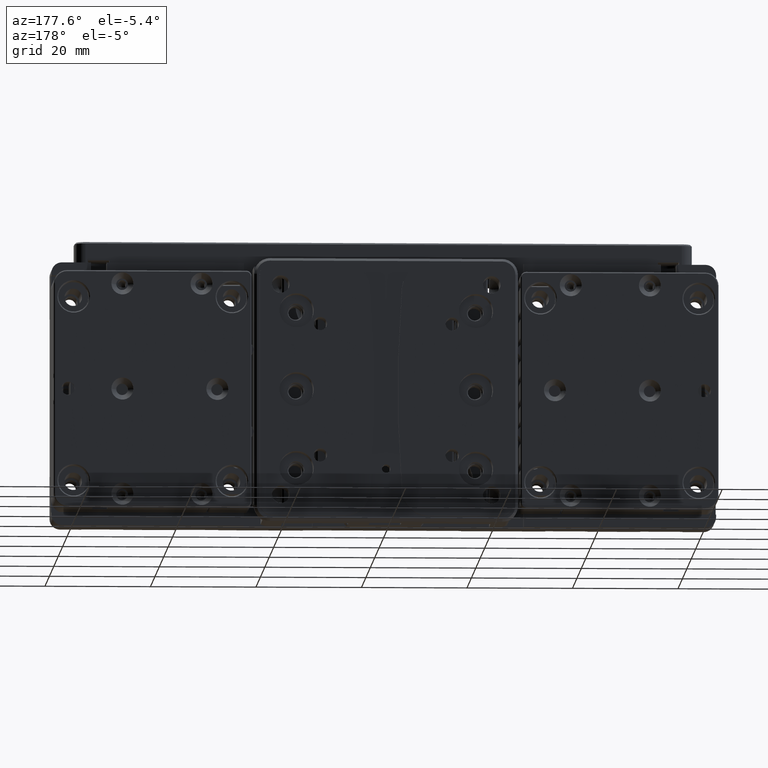
[diagram: clean part render]
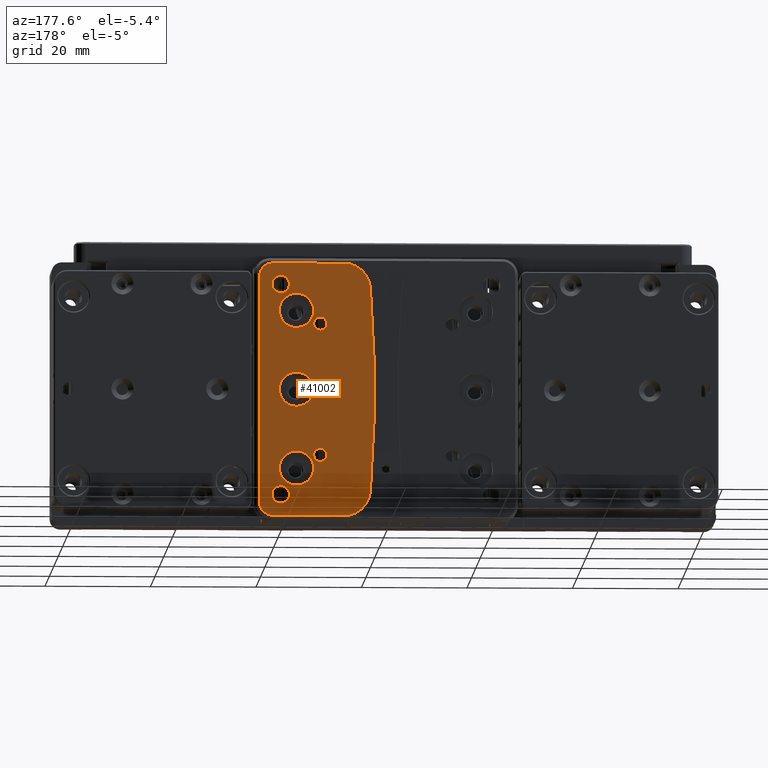
[diagram: same view with one face highlighted and labeled with its STEP entity id]
A machine part, auxiliary view. The second image highlights one B-rep face of the part: STEP entity #41002.
In plain terms, the highlighted planar face has unit normal (0, 1, 0).
Its self-contained STEP definition (entity closure, byte-faithful):
#29 = B_SPLINE_CURVE_WITH_KNOTS ( 'NONE', 3,
 ( #14380, #1636, #45003, #13805, #18655, #31107, #26872, #776, #9282, #44715, #35949, #35097, #22611, #26559, #6186, #9860, #52380, #31672, #23179, #53499, #36213, #14643, #49243, #53238, #10416, #10125, #27708, #1347, #48101, #39355, #494, #27137, #17805, #1049, #13537, #18359, #18077, #30827, #43877 ),
 .UNSPECIFIED., .F., .F.,
 ( 4, 1, 1, 1, 2, 2, 2, 1, 1, 1, 1, 2, 2, 2, 1, 1, 1, 2, 2, 2, 1, 1, 1, 2, 2, 4 ),
 ( 0.000000000000000000, 0.06250000000000284495, 0.09375000000000421885, 0.1093750000000048433, 0.1171875000000050515, 0.1250000000000052736, 0.2500000000000089373, 0.3125000000000106026, 0.3437500000000117129, 0.3593750000000122680, 0.3671875000000129896, 0.3710937500000133227, 0.3750000000000136557, 0.5000000000000109912, 0.5625000000000086597, 0.5937500000000078826, 0.6093750000000071054, 0.6171875000000066613, 0.6250000000000062172, 0.7500000000000061062, 0.8125000000000061062, 0.8437500000000062172, 0.8593750000000062172, 0.8671875000000061062, 0.8750000000000058842, 1.000000000000000000 ),
 .UNSPECIFIED. ) ;
#494 = CARTESIAN_POINT ( 'NONE',  ( 19.66602837988344987, 12.00000000000000355, -1.882998340414242966 ) ) ;
#498 = CARTESIAN_POINT ( 'NONE',  ( 13.75000000000000178, 12.00000000000000000, 12.50000000000000000 ) ) ;
#526 = CARTESIAN_POINT ( 'NONE',  ( 18.67248344549723527, 11.99999999999999822, 18.99416915874571998 ) ) ;
#636 = CARTESIAN_POINT ( 'NONE',  ( 11.31079528618943364, 12.00000000000000000, 12.11428919564030515 ) ) ;
#776 = CARTESIAN_POINT ( 'NONE',  ( 13.96787678001527766, 12.00000000000000000, -1.170250045657821980 ) ) ;
#841 = CARTESIAN_POINT ( 'NONE',  ( 18.88299834041845671, 12.00000000000000000, 2.666028379882704247 ) ) ;
#907 = CARTESIAN_POINT ( 'NONE',  ( 13.75000000000000178, 12.00000000000000000, 12.50000000000000000 ) ) ;
#1049 = CARTESIAN_POINT ( 'NONE',  ( 19.97898732659152188, 12.00000000000000178, -1.299707632458511508 ) ) ;
#1080 = CARTESIAN_POINT ( 'NONE',  ( 18.45539146887867332, 12.00000000000000000, 19.41908385115473124 ) ) ;
#1121 = ORIENTED_EDGE ( 'NONE', *, *, #53990, .T. ) ;
#1190 = CARTESIAN_POINT ( 'NONE',  ( 12.34139577475747451, 12.00000000000000178, 11.25006730190147586 ) ) ;
#1228 = CARTESIAN_POINT ( 'NONE',  ( 17.81239573087954753, 11.99999999999999822, 18.17386982665018991 ) ) ;
#1347 = CARTESIAN_POINT ( 'NONE',  ( 18.61323197277014785, 12.00000000000000000, -2.856832113944344442 ) ) ;
#1363 = CARTESIAN_POINT ( 'NONE',  ( 15.77764589737948597, 12.00000000000000355, 11.98859782982688849 ) ) ;
#1524 = DIRECTION ( 'NONE',  ( -0.000000000000000000, -1.000000000000000000, -0.000000000000000000 ) ) ;
#1550 = AXIS2_PLACEMENT_3D ( 'NONE', #30003, #29456, #34267 ) ;
#1636 = CARTESIAN_POINT ( 'NONE',  ( 13.75000000000000355, 12.00000000000000355, -0.2065496484055066861 ) ) ;
#1648 = CARTESIAN_POINT ( 'NONE',  ( 19.66602837988388330, 12.00000000000000000, 13.11700165958588471 ) ) ;
#1688 = B_SPLINE_CURVE_WITH_KNOTS ( 'NONE', 3,
 ( #22640, #26312, #18105, #31142, #43622, #39391, #1080, #9313, #526, #17838, #35127, #13564, #26596, #43911, #45868, #28007, #10449, #32265, #14965, #1925, #36242, #45572, #10155, #53526, #2213, #36509, #23484, #2511, #35980, #18685, #27737, #54105, #49829, #49565, #40784, #54364 ),
 .UNSPECIFIED., .F., .F.,
 ( 4, 1, 1, 2, 2, 2, 1, 1, 1, 2, 2, 2, 1, 1, 2, 2, 2, 1, 1, 1, 2, 2, 4 ),
 ( 0.000000000000000000, 0.06250000000000967282, 0.09375000000001534883, 0.1093750000000171807, 0.1250000000000190126, 0.2500000000000354161, 0.3125000000000429101, 0.3437500000000469624, 0.3593750000000481282, 0.3671875000000478506, 0.3750000000000475175, 0.5000000000000448530, 0.5625000000000445199, 0.5937500000000456302, 0.6093750000000460743, 0.6250000000000466294, 0.7500000000000385247, 0.8125000000000338618, 0.8437500000000300870, 0.8593750000000277556, 0.8671875000000266454, 0.8750000000000255351, 1.000000000000000000 ),
 .UNSPECIFIED. ) ;
#1709 = CARTESIAN_POINT ( 'NONE',  ( 11.39988067785202297, 12.00000000000000178, -11.90347538281029571 ) ) ;
#1773 = CARTESIAN_POINT ( 'NONE',  ( 12.11436100151380302, 11.99999999999999645, 13.68923310680025018 ) ) ;
#1789 = DIRECTION ( 'NONE',  ( 0.000000000000000000, 0.000000000000000000, 1.000000000000000000 ) ) ;
#1793 = CARTESIAN_POINT ( 'NONE',  ( 19.13959701352021625, 12.00000000000000178, 17.45664959518466475 ) ) ;
#1925 = CARTESIAN_POINT ( 'NONE',  ( 20.25920507077162114, 12.00000000000000178, 18.36442224485978869 ) ) ;
#2061 = CARTESIAN_POINT ( 'NONE',  ( 20.05835771627880959, 12.00000000000000178, 16.09991811257086880 ) ) ;
#2213 = CARTESIAN_POINT ( 'NONE',  ( 20.81887724622883695, 12.00000000000000355, 18.54951197819083575 ) ) ;
#2335 = CARTESIAN_POINT ( 'NONE',  ( 13.00000645838702162, 12.00000000000000000, 13.64585006917645416 ) ) ;
#2387 = CARTESIAN_POINT ( 'NONE',  ( 18.35000000000000142, 12.00000000000000000, -20.00000000000000000 ) ) ;
#2487 = CARTESIAN_POINT ( 'NONE',  ( 20.24999999999999645, 11.99999999999999822, 0.2065496484055080739 ) ) ;
#2495 = CARTESIAN_POINT ( 'NONE',  ( 20.61952736552822429, 11.99999999999999822, -18.47067213510407413 ) ) ;
#2511 = CARTESIAN_POINT ( 'NONE',  ( 21.35343768166858425, 12.00000000000000355, 19.04388662066243043 ) ) ;
#2531 = EDGE_CURVE ( 'NONE', #29323, #32062, #15599, .T. ) ;
#2709 = CARTESIAN_POINT ( 'NONE',  ( 18.54951197819260145, 12.00000000000000178, -20.81887724623061331 ) ) ;
#2827 = EDGE_CURVE ( 'NONE', #50929, #14316, #29, .T. ) ;
#3184 = CARTESIAN_POINT ( 'NONE',  ( 11.55519507993694184, 12.00000000000000355, 13.32301449803733817 ) ) ;
#3287 = CARTESIAN_POINT ( 'NONE',  ( 20.43481566025785057, 12.00000000000000355, -21.59332630048701063 ) ) ;
#3316 = CARTESIAN_POINT ( 'NONE',  ( 20.24999999999999289, 11.99999999999999645, -15.41345604103709732 ) ) ;
#3334 = CARTESIAN_POINT ( 'NONE',  ( 13.82606267384903731, 12.00000000000000000, 0.8122253097210844208 ) ) ;
#3403 = VERTEX_POINT ( 'NONE', #51139 ) ;
#3588 = CARTESIAN_POINT ( 'NONE',  ( 17.81239573087939476, 11.99999999999999822, -11.82613017335183869 ) ) ;
#3596 = CARTESIAN_POINT ( 'NONE',  ( 14.13948395844796124, 12.00000000000000000, 1.550648110383238354 ) ) ;
#3651 = DIRECTION ( 'NONE',  ( 1.000000000000000000, -0.000000000000000000, 0.000000000000000000 ) ) ;
#3721 = CARTESIAN_POINT ( 'NONE',  ( 13.72074512544268465, 12.00000000000000711, -12.81250397191257306 ) ) ;
#3759 = CARTESIAN_POINT ( 'NONE',  ( 21.50000000000000000, 12.00000000000000000, -24.00000000000000000 ) ) ;
#3771 = B_SPLINE_CURVE_WITH_KNOTS ( 'NONE', 3,
 ( #31291, #31571, #32113, #48858, #19082, #2061, #49418, #44057, #40917, #5237, #1793, #14278, #19356, #18822, #27297, #9460, #35829, #23062, #1228, #36658, #40384, #36114, #53133, #53395, #27033, #40086, #14538, #10593, #44329, #22504, #49126, #18239, #27874, #53954, #6339, #10293, #22771, #27590, #44890 ),
 .UNSPECIFIED., .F., .F.,
 ( 4, 1, 1, 1, 2, 2, 2, 1, 1, 1, 1, 2, 2, 2, 1, 1, 1, 2, 2, 2, 1, 1, 1, 2, 2, 4 ),
 ( 0.000000000000000000, 0.06249999999998985534, 0.09374999999998503974, 0.1093749999999821393, 0.1171874999999811678, 0.1249999999999802103, 0.2499999999999596989, 0.3124999999999494293, 0.3437499999999443223, 0.3593749999999417688, 0.3671874999999409361, 0.3710937499999407141, 0.3749999999999404365, 0.4999999999999477085, 0.5624999999999519273, 0.5937499999999544809, 0.6093749999999551470, 0.6171874999999558131, 0.6249999999999563682, 0.7499999999999724665, 0.8124999999999803491, 0.8437499999999842348, 0.8593749999999860112, 0.8671874999999867883, 0.8749999999999876765, 1.000000000000000000 ),
 .UNSPECIFIED. ) ;
#3826 = CARTESIAN_POINT ( 'NONE',  ( 20.10473459252563799, 12.00000000000000355, -21.65003366745525781 ) ) ;
#3828 = VERTEX_POINT ( 'NONE', #12225 ) ;
#3952 = CARTESIAN_POINT ( 'NONE',  ( 24.00000000000000000, 12.00000000000000000, -21.50000000000000000 ) ) ;
#4006 = CARTESIAN_POINT ( 'NONE',  ( 11.32984794906401227, 11.99999999999999822, -12.94009711632317128 ) ) ;
#4014 = CARTESIAN_POINT ( 'NONE',  ( 18.64656231832809752, 12.00000000000000178, 20.95611337933425489 ) ) ;
#4144 = CARTESIAN_POINT ( 'NONE',  ( 18.14817630305724805, 11.99999999999999467, -18.04053868708049180 ) ) ;
#4151 = CARTESIAN_POINT ( 'NONE',  ( 15.97273322492213588, 12.00000000000000178, -11.91576706332274327 ) ) ;
#4304 = CARTESIAN_POINT ( 'NONE',  ( -24.00000000000000000, 12.00000000000000000, 24.00000000000000000 ) ) ;
#4521 = EDGE_CURVE ( 'NONE', #11694, #44751, #3771, .T. ) ;
#4550 = CARTESIAN_POINT ( 'NONE',  ( 11.26097057795899481, 11.99999999999999822, -12.69644242615708585 ) ) ;
#4732 = FACE_BOUND ( 'NONE', #26152, .T. ) ;
#4954 = CARTESIAN_POINT ( 'NONE',  ( 20.25000000000000000, 12.00000000000000000, 2.786071468060228663E-16 ) ) ;
#5204 = CARTESIAN_POINT ( 'NONE',  ( 13.65492165768870869, 12.00000000000000000, 12.02142981116755394 ) ) ;
#5237 = CARTESIAN_POINT ( 'NONE',  ( 19.61509708952841180, 12.00000000000000000, 16.98099192619952191 ) ) ;
#5465 = CARTESIAN_POINT ( 'NONE',  ( 13.64585006917658738, 11.99999999999999822, 11.99999354161305121 ) ) ;
#5689 = CARTESIAN_POINT ( 'NONE',  ( 13.67015205093576391, 12.00000000000000000, -12.05990288367650365 ) ) ;
#5921 = CARTESIAN_POINT ( 'NONE',  ( 16.58707099500361792, 12.00000000000000178, 11.75006738568510123 ) ) ;
#5987 = CARTESIAN_POINT ( 'NONE',  ( 11.73795941067732507, 12.00000000000000000, -11.49437856662436452 ) ) ;
#6025 = EDGE_LOOP ( 'NONE', ( #11631, #46138 ) ) ;
#6058 = CARTESIAN_POINT ( 'NONE',  ( 13.67015205093576391, 12.00000000000000000, 12.94009711632346793 ) ) ;
#6186 = CARTESIAN_POINT ( 'NONE',  ( 15.71304554838371814, 12.00000000000000000, -2.984599718424126191 ) ) ;
#6187 = CARTESIAN_POINT ( 'NONE',  ( 16.48914864487125342, 12.00000000000000000, 3.221535459781221800 ) ) ;
#6196 = CARTESIAN_POINT ( 'NONE',  ( 18.48761328490786937, 12.00000000000000178, -19.34011429532296233 ) ) ;
#6202 = EDGE_CURVE ( 'NONE', #22639, #35130, #12969, .T. ) ;
#6257 = CARTESIAN_POINT ( 'NONE',  ( 11.47471000977076550, 12.00000000000000178, -11.77560787198907022 ) ) ;
#6339 = CARTESIAN_POINT ( 'NONE',  ( 13.99915581544945020, 12.00000000000000000, 16.24830222919076306 ) ) ;
#6457 = CARTESIAN_POINT ( 'NONE',  ( 20.01230414422176906, 12.00000000000000000, 13.77968703790210014 ) ) ;
#6476 = ORIENTED_EDGE ( 'NONE', *, *, #47890, .F. ) ;
#6522 = CARTESIAN_POINT ( 'NONE',  ( 13.75000000000000178, 12.00000000000000000, -12.50000000000000000 ) ) ;
#6591 = CARTESIAN_POINT ( 'NONE',  ( 13.32301449803876103, 12.00000000000000178, 13.44480492006192129 ) ) ;
#6643 = EDGE_LOOP ( 'NONE', ( #1121, #15146 ) ) ;
#6734 = ORIENTED_EDGE ( 'NONE', *, *, #2827, .T. ) ;
#6880 = CARTESIAN_POINT ( 'NONE',  ( 12.97854887097302523, 12.00000000000000000, 13.65493010742309643 ) ) ;
#6976 = CARTESIAN_POINT ( 'NONE',  ( 21.52932364245104679, 11.99999999999999645, -20.61953802146162573 ) ) ;
#7029 = CARTESIAN_POINT ( 'NONE',  ( 18.35000000000000497, 11.99999999999999645, -19.79000383043994660 ) ) ;
#7143 = CARTESIAN_POINT ( 'NONE',  ( 11.24999999999999822, 11.99999999999999822, -12.57938721587888331 ) ) ;
#7241 = CARTESIAN_POINT ( 'NONE',  ( 21.64999999999999858, 12.00000000000000000, -20.00000000000000000 ) ) ;
#7290 = CARTESIAN_POINT ( 'NONE',  ( 19.41908385115435465, 12.00000000000000178, -18.45539146887895043 ) ) ;
#7385 = DIRECTION ( 'NONE',  ( 0.000000000000000000, -1.000000000000000000, 0.000000000000000000 ) ) ;
#7514 = CARTESIAN_POINT ( 'NONE',  ( 18.36448116290587507, 12.00000000000000000, -20.25935403089955145 ) ) ;
#7541 = CARTESIAN_POINT ( 'NONE',  ( 13.94164228372120107, 12.00000000000000178, -16.09991811257086525 ) ) ;
#7548 = CARTESIAN_POINT ( 'NONE',  ( 15.85182369694214799, 12.00000000000000000, -11.95946131291926307 ) ) ;
#7559 = CARTESIAN_POINT ( 'NONE',  ( 13.99915581544938981, 11.99999999999999822, 1.248302229190742185 ) ) ;
#7696 = CARTESIAN_POINT ( 'NONE',  ( 13.64585006917641152, 12.00000000000000000, -13.00000645838712643 ) ) ;
#7710 = CARTESIAN_POINT ( 'NONE',  ( 11.25000000000000000, 12.00000000000000178, 12.65913117625909123 ) ) ;
#7845 = CARTESIAN_POINT ( 'NONE',  ( 20.13828294778423356, 12.00000000000000000, -14.14321122307573120 ) ) ;
#7906 = CARTESIAN_POINT ( 'NONE',  ( 24.00000000000000000, 12.00000000000000000, -24.00000000000000000 ) ) ;
#8079 = CARTESIAN_POINT ( 'NONE',  ( 20.58091614884579101, 12.00000000000000355, -21.54460853112073693 ) ) ;
#8103 = CARTESIAN_POINT ( 'NONE',  ( 19.94531297559694849, 12.00000000000000000, -16.37622671751375591 ) ) ;
#8109 = CARTESIAN_POINT ( 'NONE',  ( 18.22235410262072008, 12.00000000000000178, -11.98859782982700040 ) ) ;
#8173 = LINE ( 'NONE', #7906, #39195 ) ;
#8238 = CARTESIAN_POINT ( 'NONE',  ( 12.94009711632349990, 12.00000000000000000, -13.67015205093576391 ) ) ;
#8253 = CARTESIAN_POINT ( 'NONE',  ( 11.73795941067656656, 12.00000000000000178, 13.50562143337487697 ) ) ;
#8597 = CARTESIAN_POINT ( 'NONE',  ( 11.29296809700606374, 12.00000000000000178, 12.17053798554671395 ) ) ;
#8665 = CARTESIAN_POINT ( 'NONE',  ( 19.66602837988299868, 11.99999999999999645, -16.88299834041436043 ) ) ;
#8812 = CARTESIAN_POINT ( 'NONE',  ( 11.31079528618943009, 11.99999999999999645, -12.88571080435958471 ) ) ;
#8877 = CARTESIAN_POINT ( 'NONE',  ( 11.25000000000000178, 12.00000000000000178, 12.42061278412098702 ) ) ;
#8943 = EDGE_CURVE ( 'NONE', #47505, #42345, #28218, .T. ) ;
#8986 = FACE_BOUND ( 'NONE', #6025, .T. ) ;
#9141 = CARTESIAN_POINT ( 'NONE',  ( 11.32359429380825766, 11.99999999999999645, 12.07695880349772111 ) ) ;
#9241 = VERTEX_POINT ( 'NONE', #3759 ) ;
#9282 = CARTESIAN_POINT ( 'NONE',  ( 14.14316788605636255, 12.00000000000000178, -1.613231972768316203 ) ) ;
#9313 = CARTESIAN_POINT ( 'NONE',  ( 18.54951197819359976, 12.00000000000000355, 19.18112275376840614 ) ) ;
#9425 = CARTESIAN_POINT ( 'NONE',  ( 13.12028855198309785, 12.00000000000000000, 11.40109802053376775 ) ) ;
#9460 = CARTESIAN_POINT ( 'NONE',  ( 18.24825314420429123, 12.00000000000000355, 18.00077009587855770 ) ) ;
#9552 = PLANE ( 'NONE',  #17866 ) ;
#9723 = CARTESIAN_POINT ( 'NONE',  ( 12.57930211262126363, 12.00000000000000355, 11.24996634904926651 ) ) ;
#9860 = CARTESIAN_POINT ( 'NONE',  ( 15.75174685579642464, 12.00000000000000178, -3.000770095879078614 ) ) ;
#9977 = AXIS2_PLACEMENT_3D ( 'NONE', #55954, #38372, #38930 ) ;
#10000 = CARTESIAN_POINT ( 'NONE',  ( 12.42069788737847169, 12.00000000000000178, 13.75003365095073882 ) ) ;
#10125 = CARTESIAN_POINT ( 'NONE',  ( 18.14817630305716989, 12.00000000000000355, -3.040538687080759139 ) ) ;
#10138 = CARTESIAN_POINT ( 'NONE',  ( 18.98099192619567432, 12.00000000000000000, 12.38490291046413994 ) ) ;
#10155 = CARTESIAN_POINT ( 'NONE',  ( 20.55838787980550819, 12.00000000000000533, 18.44712868620742086 ) ) ;
#10293 = CARTESIAN_POINT ( 'NONE',  ( 13.98769585577823449, 12.00000000000000178, 16.22031296209821249 ) ) ;
#10416 = CARTESIAN_POINT ( 'NONE',  ( 18.09987886562847947, 12.00000000000000178, -3.058373246573453219 ) ) ;
#10422 = CARTESIAN_POINT ( 'NONE',  ( 16.79353549750329222, 12.00000000000000178, 3.250033692842633659 ) ) ;
#10449 = CARTESIAN_POINT ( 'NONE',  ( 19.58738124524253266, 11.99999999999999822, 18.38868399353371430 ) ) ;
#10499 = CARTESIAN_POINT ( 'NONE',  ( 11.27925487455732068, 11.99999999999999822, -12.18749602809119814 ) ) ;
#10593 = CARTESIAN_POINT ( 'NONE',  ( 15.38676802723769121, 12.00000000000000178, 17.85683211394891856 ) ) ;
#10701 = CARTESIAN_POINT ( 'NONE',  ( 18.28695445161698174, 12.00000000000000533, 2.984599718423731840 ) ) ;
#10711 = CARTESIAN_POINT ( 'NONE',  ( 18.14817630305769569, 11.99999999999999822, 11.95946131291926307 ) ) ;
#10833 = CARTESIAN_POINT ( 'NONE',  ( 13.59890197946624468, 11.99999999999999822, 13.12028855198336430 ) ) ;
#10970 = CARTESIAN_POINT ( 'NONE',  ( 20.95611337933318552, 11.99999999999999645, -18.64656231832767119 ) ) ;
#11249 = EDGE_CURVE ( 'NONE', #46743, #3403, #36214, .T. ) ;
#11253 = CARTESIAN_POINT ( 'NONE',  ( 20.20946918505795864, 12.00000000000000000, -18.35006733490982356 ) ) ;
#11497 = CARTESIAN_POINT ( 'NONE',  ( 21.52349382610838546, 11.99999999999999467, -20.63377137605057499 ) ) ;
#11532 = CARTESIAN_POINT ( 'NONE',  ( 20.03212321998473655, 12.00000000000000000, -13.82974995434214982 ) ) ;
#11549 = CARTESIAN_POINT ( 'NONE',  ( 21.64999999999999858, 12.00000000000000000, -20.00000000000000000 ) ) ;
#11631 = ORIENTED_EDGE ( 'NONE', *, *, #11249, .T. ) ;
#11689 = EDGE_CURVE ( 'NONE', #9241, #46157, #18747, .T. ) ;
#11694 = VERTEX_POINT ( 'NONE', #33429 ) ;
#11759 = CARTESIAN_POINT ( 'NONE',  ( 21.45219867616014398, 12.00000000000000355, -20.78734932246197431 ) ) ;
#11792 = CARTESIAN_POINT ( 'NONE',  ( 14.33397162011381987, 12.00000000000000178, -13.11700165958502495 ) ) ;
#11926 = CARTESIAN_POINT ( 'NONE',  ( 11.67698550196208629, 12.00000000000000000, -13.44480492006248262 ) ) ;
#11933 = CARTESIAN_POINT ( 'NONE',  ( 21.45048802181073455, 12.00000000000000000, 20.81887724622801983 ) ) ;
#12055 = CARTESIAN_POINT ( 'NONE',  ( 18.09987886562863935, 12.00000000000000000, -18.05837324657295184 ) ) ;
#12083 = CARTESIAN_POINT ( 'NONE',  ( 11.25000000000000178, 12.00000000000000000, 12.50000000000000000 ) ) ;
#12225 = CARTESIAN_POINT ( 'NONE',  ( 13.75000000000000178, 12.00000000000000000, -12.50000000000000000 ) ) ;
#12243 = ORIENTED_EDGE ( 'NONE', *, *, #32643, .T. ) ;
#12329 = CARTESIAN_POINT ( 'NONE',  ( 19.58738124523546276, 12.00000000000000000, -21.61131600646559292 ) ) ;
#12357 = CARTESIAN_POINT ( 'NONE',  ( 13.96787678001532385, 11.99999999999999822, -16.17025004565787327 ) ) ;
#12363 = CARTESIAN_POINT ( 'NONE',  ( 19.61509708953334652, 11.99999999999999822, -13.01900807380469693 ) ) ;
#12506 = CARTESIAN_POINT ( 'NONE',  ( 11.99999354161337806, 12.00000000000000000, -13.64585006917671173 ) ) ;
#12514 = CARTESIAN_POINT ( 'NONE',  ( 19.74079492923177526, 11.99999999999999822, 21.63557775514082238 ) ) ;
#12537 = CARTESIAN_POINT ( 'NONE',  ( 21.64999999999999858, 12.00000000000000000, 20.00000000000000000 ) ) ;
#12629 = CARTESIAN_POINT ( 'NONE',  ( 19.45664959518607873, 12.00000000000000178, -17.13959701351662801 ) ) ;
#12635 = CARTESIAN_POINT ( 'NONE',  ( 14.02101267340776758, 12.00000000000000000, -13.70029236754129620 ) ) ;
#12717 = CARTESIAN_POINT ( 'NONE',  ( 13.75000000000000178, 12.00000000000000000, 15.00000000000000000 ) ) ;
#12761 = CARTESIAN_POINT ( 'NONE',  ( 13.75000000000000355, 12.00000000000000355, -12.65913117626179307 ) ) ;
#12895 = CARTESIAN_POINT ( 'NONE',  ( 14.14316788605555786, 11.99999999999999822, -16.61323197276751529 ) ) ;
#12969 = CIRCLE ( 'NONE', #39212, 5.000000000000000888 ) ;
#13042 = CARTESIAN_POINT ( 'NONE',  ( 13.60011932214586494, 12.00000000000000355, -13.09652461719236882 ) ) ;
#13046 = CARTESIAN_POINT ( 'NONE',  ( 13.75000000000000178, 12.00000000000000000, 15.00000000000000000 ) ) ;
#13241 = FACE_BOUND ( 'NONE', #40693, .T. ) ;
#13372 = ORIENTED_EDGE ( 'NONE', *, *, #2531, .T. ) ;
#13407 = CARTESIAN_POINT ( 'NONE',  ( 11.67698550196257656, 12.00000000000000178, 11.55519507993689388 ) ) ;
#13537 = CARTESIAN_POINT ( 'NONE',  ( 20.00084418455029223, 11.99999999999999467, -1.248302229190622281 ) ) ;
#13564 = CARTESIAN_POINT ( 'NONE',  ( 19.21265067754038469, 12.00000000000000178, 18.54780132383701741 ) ) ;
#13666 = CARTESIAN_POINT ( 'NONE',  ( 11.40109802053557075, 12.00000000000000178, 11.87971144801454315 ) ) ;
#13805 = CARTESIAN_POINT ( 'NONE',  ( 13.86171705221576822, 12.00000000000000178, -0.8567887769236447459 ) ) ;
#13821 = CARTESIAN_POINT ( 'NONE',  ( 19.94531297559733929, 12.00000000000000355, 13.62377328248636488 ) ) ;
#13881 = CARTESIAN_POINT ( 'NONE',  ( 18.20830505842592117, 12.00000000000000000, 3.017060170696801435 ) ) ;
#13891 = CARTESIAN_POINT ( 'NONE',  ( 13.32301449803826721, 12.00000000000000178, -11.55519507993745876 ) ) ;
#13947 = CARTESIAN_POINT ( 'NONE',  ( 11.77560787198824421, 12.00000000000000000, 11.47471000977133926 ) ) ;
#14278 = CARTESIAN_POINT ( 'NONE',  ( 18.88299834042064163, 12.00000000000000000, 17.66602837988051888 ) ) ;
#14316 = VERTEX_POINT ( 'NONE', #4954 ) ;
#14380 = CARTESIAN_POINT ( 'NONE',  ( 13.75000000000000178, 12.00000000000000000, -3.582091887506007718E-16 ) ) ;
#14538 = CARTESIAN_POINT ( 'NONE',  ( 15.82974995434180698, 12.00000000000000178, 18.03212321998440260 ) ) ;
#14598 = CARTESIAN_POINT ( 'NONE',  ( 21.50000000000000000, 12.00000000000000000, 24.00000000000000000 ) ) ;
#14643 = CARTESIAN_POINT ( 'NONE',  ( 17.51085135512752800, 11.99999999999999822, -3.221535459781220023 ) ) ;
#14657 = CARTESIAN_POINT ( 'NONE',  ( 16.18760426912199790, 12.00000000000000355, 11.82613017335184225 ) ) ;
#14721 = CARTESIAN_POINT ( 'NONE',  ( 13.22439212801322128, 11.99999999999999822, -11.47471000977232691 ) ) ;
#14789 = CARTESIAN_POINT ( 'NONE',  ( 12.05990288367672214, 11.99999999999999822, 13.67015205093587937 ) ) ;
#14941 = CARTESIAN_POINT ( 'NONE',  ( 20.25000000000000000, 12.00000000000000000, 2.786071468060228663E-16 ) ) ;
#14949 = CARTESIAN_POINT ( 'NONE',  ( 19.89526540747102601, 12.00000000000000178, -18.34996633254509035 ) ) ;
#14950 = CARTESIAN_POINT ( 'NONE',  ( 14.38490291046328018, 12.00000000000000355, 13.01900807380663494 ) ) ;
#14965 = CARTESIAN_POINT ( 'NONE',  ( 20.10473459252827766, 12.00000000000000000, 18.34996633254509391 ) ) ;
#14975 = AXIS2_PLACEMENT_3D ( 'NONE', #29582, #39498, #52238 ) ;
#15018 = CARTESIAN_POINT ( 'NONE',  ( 12.07699869564966910, 12.00000000000000355, -11.32357851992509978 ) ) ;
#15146 = ORIENTED_EDGE ( 'NONE', *, *, #27739, .T. ) ;
#15235 = CARTESIAN_POINT ( 'NONE',  ( 19.18112275377138687, 12.00000000000000178, -18.54951197819134379 ) ) ;
#15494 = CARTESIAN_POINT ( 'NONE',  ( 18.55064811038576167, 12.00000000000000178, 2.860516041549759692 ) ) ;
#15501 = CARTESIAN_POINT ( 'NONE',  ( 20.41261875475886711, 11.99999999999999822, -18.38868399353371785 ) ) ;
#15599 = B_SPLINE_CURVE_WITH_KNOTS ( 'NONE', 3,
 ( #52795, #8877, #52510, #8597, #636, #9141, #30958, #13666, #17658, #13407, #13947, #21892, #34951, #52244, #30694, #17945, #1190, #9723, #25883, #21631, #26156, #48244, #47969, #9425, #30421, #43457, #53098, #26719, #44295, #5465, #5204, #22472, #39779, #907 ),
 .UNSPECIFIED., .F., .F.,
 ( 4, 1, 1, 2, 2, 2, 1, 1, 2, 2, 2, 1, 1, 2, 2, 2, 1, 1, 2, 2, 4 ),
 ( 0.000000000000000000, 0.06249999999999854283, 0.09374999999999780731, 0.1093749999999981126, 0.1249999999999984179, 0.2500000000000033862, 0.3125000000000058842, 0.3437500000000067724, 0.3593750000000069389, 0.3750000000000071054, 0.5000000000000059952, 0.5625000000000061062, 0.5937500000000061062, 0.6093750000000059952, 0.6250000000000058842, 0.7500000000000016653, 0.8124999999999991118, 0.8437499999999987788, 0.8593749999999988898, 0.8749999999999988898, 1.000000000000000000 ),
 .UNSPECIFIED. ) ;
#15734 = CARTESIAN_POINT ( 'NONE',  ( 20.81887724622751534, 12.00000000000000178, -21.45048802181122483 ) ) ;
#15783 = CARTESIAN_POINT ( 'NONE',  ( 14.33397162011425685, 12.00000000000000000, 1.882998340415103833 ) ) ;
#15790 = CARTESIAN_POINT ( 'NONE',  ( 21.56975022222995619, 12.00000000000000000, -19.49083761742470244 ) ) ;
#16062 = CARTESIAN_POINT ( 'NONE',  ( 16.18760426912185579, 12.00000000000000178, -18.17386982665019346 ) ) ;
#16223 = EDGE_LOOP ( 'NONE', ( #12243, #13372 ) ) ;
#16297 = CARTESIAN_POINT ( 'NONE',  ( 21.65000000000000213, 12.00000000000000178, -20.20999616956539668 ) ) ;
#16322 = CARTESIAN_POINT ( 'NONE',  ( 15.71304554838321899, 12.00000000000000000, -17.98459971842362037 ) ) ;
#16329 = CARTESIAN_POINT ( 'NONE',  ( 20.05835771627880249, 12.00000000000000178, -13.90008188742865869 ) ) ;
#16469 = CARTESIAN_POINT ( 'NONE',  ( 21.32751655449917294, 11.99999999999999822, 21.00583084125860367 ) ) ;
#16493 = EDGE_LOOP ( 'NONE', ( #45638, #6734 ) ) ;
#16570 = CARTESIAN_POINT ( 'NONE',  ( 18.44714446782691653, 12.00000000000000533, -20.55842777983977498 ) ) ;
#16652 = EDGE_CURVE ( 'NONE', #28111, #33577, #40339, .T. ) ;
#16754 = CARTESIAN_POINT ( 'NONE',  ( 11.29296809700606197, 12.00000000000000178, -12.82946201445311729 ) ) ;
#16763 = CARTESIAN_POINT ( 'NONE',  ( 18.48761328490776279, 12.00000000000000355, 20.65988570467676411 ) ) ;
#16769 = CARTESIAN_POINT ( 'NONE',  ( 11.27925487455732423, 12.00000000000000355, 12.81250397190987300 ) ) ;
#16796 = B_SPLINE_CURVE_WITH_KNOTS ( 'NONE', 3,
 ( #28118, #35809, #27567, #44870, #45695, #28400, #6058, #10833, #23334, #6591, #54210, #23869, #41183, #2335, #6880, #18512, #48838, #10000, #27278, #40640, #1773, #19065, #14789, #49398, #8253, #3184, #50238, #46825, #38312, #33767, #21000, #16769, #7710, #25531 ),
 .UNSPECIFIED., .F., .F.,
 ( 4, 1, 1, 2, 2, 2, 1, 1, 2, 2, 2, 1, 1, 2, 2, 2, 1, 1, 2, 2, 4 ),
 ( 0.000000000000000000, 0.06249999999999872324, 0.09374999999999822364, 0.1093749999999979738, 0.1249999999999977240, 0.2499999999999973355, 0.3124999999999976130, 0.3437499999999980571, 0.3593749999999986122, 0.3749999999999991118, 0.5000000000000022204, 0.5625000000000029976, 0.5937500000000035527, 0.6093750000000031086, 0.6250000000000026645, 0.7499999999999964473, 0.8124999999999928946, 0.8437499999999915623, 0.8593749999999914513, 0.8749999999999913403, 1.000000000000000000 ),
 .UNSPECIFIED. ) ;
#16870 = CARTESIAN_POINT ( 'NONE',  ( 21.49527580819385975, 12.00000000000000178, -20.69875642097083102 ) ) ;
#16898 = CARTESIAN_POINT ( 'NONE',  ( 13.77852350269338544, 12.00000000000000000, -15.51100036046815767 ) ) ;
#16905 = CARTESIAN_POINT ( 'NONE',  ( 14.54335040481210584, 12.00000000000000178, -12.86040298648302382 ) ) ;
#16987 = VERTEX_POINT ( 'NONE', #33476 ) ;
#17052 = CARTESIAN_POINT ( 'NONE',  ( 18.38861643441566684, 11.99999999999999645, 20.41244825981907596 ) ) ;
#17167 = CARTESIAN_POINT ( 'NONE',  ( 14.38490291046821135, 11.99999999999999645, -16.98099192619758213 ) ) ;
#17314 = CARTESIAN_POINT ( 'NONE',  ( 19.41908385115419122, 12.00000000000000000, 21.54460853112079732 ) ) ;
#17584 = CARTESIAN_POINT ( 'NONE',  ( 13.12028855198309074, 12.00000000000000000, -13.59890197946623580 ) ) ;
#17658 = CARTESIAN_POINT ( 'NONE',  ( 11.49437856662529889, 11.99999999999999822, 11.73795941067665893 ) ) ;
#17805 = CARTESIAN_POINT ( 'NONE',  ( 19.94531297559714034, 12.00000000000000355, -1.376226717513697073 ) ) ;
#17838 = CARTESIAN_POINT ( 'NONE',  ( 18.91366899381468514, 12.00000000000000000, 18.75282613719044278 ) ) ;
#17866 = AXIS2_PLACEMENT_3D ( 'NONE', #52927, #54048, #28520 ) ;
#17945 = CARTESIAN_POINT ( 'NONE',  ( 12.18732548521621517, 12.00000000000000178, 11.27932247243241015 ) ) ;
#18077 = CARTESIAN_POINT ( 'NONE',  ( 20.17393732615096980, 12.00000000000000000, -0.8122253097280950351 ) ) ;
#18105 = CARTESIAN_POINT ( 'NONE',  ( 18.36448116290587507, 12.00000000000000000, 19.74064596909922642 ) ) ;
#18239 = CARTESIAN_POINT ( 'NONE',  ( 14.13948395844829697, 12.00000000000000000, 16.55064811038332806 ) ) ;
#18329 = FACE_BOUND ( 'NONE', #16223, .T. ) ;
#18359 = CARTESIAN_POINT ( 'NONE',  ( 20.01230414422176551, 11.99999999999999645, -1.220312962097835685 ) ) ;
#18372 = CARTESIAN_POINT ( 'NONE',  ( 20.00084418455036328, 12.00000000000000355, 13.75169777080939859 ) ) ;
#18439 = CARTESIAN_POINT ( 'NONE',  ( 13.73902942204100341, 11.99999999999999822, -12.30355757384445248 ) ) ;
#18512 = CARTESIAN_POINT ( 'NONE',  ( 12.81267451478688102, 12.00000000000000178, 13.72067752756758985 ) ) ;
#18655 = CARTESIAN_POINT ( 'NONE',  ( 13.91579285940531463, 12.00000000000000000, -1.027331964912622242 ) ) ;
#18666 = CARTESIAN_POINT ( 'NONE',  ( 14.14316788605751007, 11.99999999999999822, 13.38676802722980952 ) ) ;
#18685 = CARTESIAN_POINT ( 'NONE',  ( 21.49527580819367856, 12.00000000000000178, 19.30124357902871779 ) ) ;
#18700 = EDGE_CURVE ( 'NONE', #3403, #46743, #1688, .T. ) ;
#18707 = B_SPLINE_CURVE_WITH_KNOTS ( 'NONE', 3,
 ( #12717, #31684, #26887, #40216, #48716, #27426, #31949, #35963, #18666, #14950, #35376, #44727, #40515, #32249, #36226, #36494, #1363, #39934, #14657, #5921, #23192, #53788, #49548, #31120, #19202, #10711, #27991, #45278, #10138, #52666, #1648, #45017, #13821, #22625, #18372, #6457, #23734, #31423, #49254 ),
 .UNSPECIFIED., .F., .F.,
 ( 4, 1, 1, 1, 2, 2, 2, 1, 1, 1, 1, 2, 2, 2, 1, 1, 1, 2, 2, 2, 1, 1, 1, 2, 2, 4 ),
 ( 0.000000000000000000, 0.06250000000000222045, 0.09375000000000327516, 0.1093750000000037331, 0.1171875000000038719, 0.1250000000000039968, 0.2500000000000034972, 0.3125000000000031086, 0.3437500000000031086, 0.3593750000000029976, 0.3671875000000034972, 0.3710937500000042744, 0.3750000000000051070, 0.5000000000000049960, 0.5625000000000049960, 0.5937500000000045519, 0.6093750000000043299, 0.6171875000000042188, 0.6250000000000042188, 0.7500000000000046629, 0.8125000000000051070, 0.8437500000000053291, 0.8593750000000056621, 0.8671875000000057732, 0.8750000000000059952, 1.000000000000000000 ),
 .UNSPECIFIED. ) ;
#18747 = CIRCLE ( 'NONE', #1550, 2.499999999999998668 ) ;
#18822 = CARTESIAN_POINT ( 'NONE',  ( 18.37622671751648795, 12.00000000000000178, 17.94531297559585781 ) ) ;
#18998 = CARTESIAN_POINT ( 'NONE',  ( 11.35414993082284241, 12.00000000000000355, -11.99999354161383280 ) ) ;
#19065 = CARTESIAN_POINT ( 'NONE',  ( 12.07699869564966200, 12.00000000000000000, 13.67642148007490022 ) ) ;
#19082 = CARTESIAN_POINT ( 'NONE',  ( 20.08420714059467471, 12.00000000000000178, 16.02733196491219303 ) ) ;
#19202 = CARTESIAN_POINT ( 'NONE',  ( 18.09987886562948489, 12.00000000000000178, 11.94162675342658808 ) ) ;
#19223 = ORIENTED_EDGE ( 'NONE', *, *, #4521, .T. ) ;
#19269 = CARTESIAN_POINT ( 'NONE',  ( 13.70703190299393803, 12.00000000000000178, -12.17053798554804267 ) ) ;
#19356 = CARTESIAN_POINT ( 'NONE',  ( 18.55064811038738526, 12.00000000000000178, 17.86051604154813077 ) ) ;
#19780 = CARTESIAN_POINT ( 'NONE',  ( 21.59328211195199643, 12.00000000000000178, -19.56507261964532063 ) ) ;
#20047 = CARTESIAN_POINT ( 'NONE',  ( 13.75000000000000178, 12.00000000000000000, -3.582091887506007718E-16 ) ) ;
#20250 = CIRCLE ( 'NONE', #22066, 250.0000000000000000 ) ;
#20295 = CARTESIAN_POINT ( 'NONE',  ( 17.85667702291790704, 11.99999999999999822, -18.13832716963874248 ) ) ;
#20316 = CARTESIAN_POINT ( 'NONE',  ( 18.35000000000000142, 12.00000000000000000, -20.00000000000000000 ) ) ;
#20556 = CARTESIAN_POINT ( 'NONE',  ( 19.30124357902910504, 12.00000000000000178, -21.49527580819406936 ) ) ;
#20585 = CARTESIAN_POINT ( 'NONE',  ( 20.01230414422176906, 12.00000000000000000, -16.22031296209776841 ) ) ;
#20729 = CARTESIAN_POINT ( 'NONE',  ( 21.08633100618711609, 12.00000000000000000, 21.24717386280740072 ) ) ;
#20823 = CARTESIAN_POINT ( 'NONE',  ( 21.61138356558433671, 12.00000000000000000, -20.41244825982443345 ) ) ;
#20853 = CARTESIAN_POINT ( 'NONE',  ( 20.22147649730661101, 12.00000000000000000, -14.48899963953001269 ) ) ;
#20861 = CARTESIAN_POINT ( 'NONE',  ( 15.85182369694267734, 11.99999999999999822, 3.040538687080759139 ) ) ;
#20987 = CARTESIAN_POINT ( 'NONE',  ( 11.90347538280903450, 11.99999999999999822, -13.60011932214671582 ) ) ;
#20995 = CARTESIAN_POINT ( 'NONE',  ( 19.89526540747367278, 12.00000000000000178, 21.65003366745524715 ) ) ;
#21000 = CARTESIAN_POINT ( 'NONE',  ( 11.34507834231128953, 12.00000000000000000, 12.97857018883265212 ) ) ;
#21094 = CARTESIAN_POINT ( 'NONE',  ( 18.35000000000000142, 12.00000000000000355, -20.10481971260138323 ) ) ;
#21120 = CARTESIAN_POINT ( 'NONE',  ( 15.62377328248479991, 12.00000000000000178, -17.94531297559660388 ) ) ;
#21129 = CARTESIAN_POINT ( 'NONE',  ( 19.13959701351775067, 12.00000000000000000, -12.54335040481323738 ) ) ;
#21283 = CARTESIAN_POINT ( 'NONE',  ( 13.52528999022641365, 12.00000000000000000, -13.22439212801447717 ) ) ;
#21435 = CARTESIAN_POINT ( 'NONE',  ( 15.82974995434212673, 12.00000000000000178, -11.96787678001524391 ) ) ;
#21565 = CARTESIAN_POINT ( 'NONE',  ( 12.02145112902684332, 12.00000000000000178, -13.65493010742309643 ) ) ;
#21568 = DIRECTION ( 'NONE',  ( -1.000000000000000000, -0.000000000000000000, 0.000000000000000000 ) ) ;
#21573 = CARTESIAN_POINT ( 'NONE',  ( 20.61952736552778731, 12.00000000000000000, 21.52932786489597561 ) ) ;
#21631 = CARTESIAN_POINT ( 'NONE',  ( 12.82935031642749557, 12.00000000000000000, 11.29292393013322204 ) ) ;
#21821 = CARTESIAN_POINT ( 'NONE',  ( 11.96102033297377787, 12.00000000000000178, -13.62810262512491377 ) ) ;
#21892 = CARTESIAN_POINT ( 'NONE',  ( 11.90347538280968287, 11.99999999999999822, 11.39988067785245640 ) ) ;
#21967 = B_SPLINE_CURVE_WITH_KNOTS ( 'NONE', 3,
 ( #30196, #25116, #16898, #46359, #42424, #7541, #25377, #12357, #12895, #17167, #50897, #24825, #42145, #21120, #16322, #56009, #29654, #38731, #16062, #25950, #34443, #47487, #20295, #51470, #12055, #4144, #55174, #46936, #51728, #12629, #8665, #43263, #8103, #37610, #42691, #20585, #29364, #3316, #47200 ),
 .UNSPECIFIED., .F., .F.,
 ( 4, 1, 1, 1, 2, 2, 2, 1, 1, 1, 1, 2, 2, 2, 1, 1, 1, 2, 2, 2, 1, 1, 1, 2, 2, 4 ),
 ( 0.000000000000000000, 0.06249999999998749611, 0.09374999999998144540, 0.1093749999999788641, 0.1171874999999779898, 0.1249999999999771017, 0.2499999999999648059, 0.3124999999999584777, 0.3437499999999550915, 0.3593749999999538702, 0.3671874999999534817, 0.3710937499999537037, 0.3749999999999538702, 0.4999999999999603650, 0.5624999999999624745, 0.5937499999999641398, 0.6093749999999643618, 0.6171874999999648059, 0.6249999999999652500, 0.7499999999999757971, 0.8124999999999811262, 0.8437499999999837907, 0.8593749999999850120, 0.8671874999999854561, 0.8749999999999859002, 1.000000000000000000 ),
 .UNSPECIFIED. ) ;
#22036 = CARTESIAN_POINT ( 'NONE',  ( 24.00000000000000000, 12.00000000000000000, 21.50000000000000000 ) ) ;
#22066 = AXIS2_PLACEMENT_3D ( 'NONE', #26445, #1524, #1789 ) ;
#22338 = EDGE_CURVE ( 'NONE', #35130, #30723, #20250, .T. ) ;
#22406 = CARTESIAN_POINT ( 'NONE',  ( 19.85683211394459136, 12.00000000000000000, 1.613231972765918565 ) ) ;
#22472 = CARTESIAN_POINT ( 'NONE',  ( 13.72074512544267755, 11.99999999999999645, 12.18749602808849808 ) ) ;
#22504 = CARTESIAN_POINT ( 'NONE',  ( 14.54335040481261210, 12.00000000000000355, 17.13959701351712184 ) ) ;
#22569 = ORIENTED_EDGE ( 'NONE', *, *, #11689, .F. ) ;
#22611 = CARTESIAN_POINT ( 'NONE',  ( 15.44935188961646233, 12.00000000000000000, -2.860516041551028010 ) ) ;
#22625 = CARTESIAN_POINT ( 'NONE',  ( 19.97898732659162846, 12.00000000000000000, 13.70029236754152357 ) ) ;
#22639 = VERTEX_POINT ( 'NONE', #52473 ) ;
#22640 = CARTESIAN_POINT ( 'NONE',  ( 18.35000000000000142, 12.00000000000000000, 20.00000000000000000 ) ) ;
#22771 = CARTESIAN_POINT ( 'NONE',  ( 13.82606267384903909, 12.00000000000000355, 15.81222530972212503 ) ) ;
#22965 = CARTESIAN_POINT ( 'NONE',  ( 13.50562143337302423, 12.00000000000000000, -11.73795941067553628 ) ) ;
#23062 = CARTESIAN_POINT ( 'NONE',  ( 18.20830505842597802, 11.99999999999999822, 18.01706017069673393 ) ) ;
#23179 = CARTESIAN_POINT ( 'NONE',  ( 16.18760426911980232, 11.99999999999999822, -3.173869826647994330 ) ) ;
#23192 = CARTESIAN_POINT ( 'NONE',  ( 17.20646450249819637, 12.00000000000000355, 11.74996630715745027 ) ) ;
#23224 = VECTOR ( 'NONE', #39981, 1000.000000000000000 ) ;
#23305 = B_SPLINE_CURVE_WITH_KNOTS ( 'NONE', 3,
 ( #6522, #32316, #18439, #19269, #44511, #45081, #5689, #36287, #22965, #13891, #14721, #36032, #53862, #35734, #40288, #36563, #23801, #53573, #31488, #49611, #53312, #15018, #27492, #44796, #5987, #40578, #6257, #1709, #41114, #18998, #49324, #10499, #48486, #40830 ),
 .UNSPECIFIED., .F., .F.,
 ( 4, 1, 1, 2, 2, 2, 1, 1, 2, 2, 2, 1, 1, 2, 2, 2, 1, 1, 2, 2, 4 ),
 ( 0.000000000000000000, 0.06250000000000291434, 0.09375000000000451028, 0.1093750000000046352, 0.1250000000000047740, 0.2500000000000041633, 0.3125000000000043299, 0.3437500000000048295, 0.3593750000000044964, 0.3750000000000041633, 0.4999999999999996114, 0.5624999999999973355, 0.5937499999999962252, 0.6093749999999956701, 0.6249999999999950040, 0.7499999999999940048, 0.8124999999999934497, 0.8437499999999933387, 0.8593749999999942268, 0.8749999999999950040, 1.000000000000000000 ),
 .UNSPECIFIED. ) ;
#23334 = CARTESIAN_POINT ( 'NONE',  ( 13.50562143337203658, 11.99999999999999822, 13.26204058932571783 ) ) ;
#23467 = CARTESIAN_POINT ( 'NONE',  ( 21.55285553217309413, 11.99999999999999822, -19.44157222016114872 ) ) ;
#23484 = CARTESIAN_POINT ( 'NONE',  ( 21.24717386280716624, 12.00000000000000178, 18.91366899381227995 ) ) ;
#23732 = CARTESIAN_POINT ( 'NONE',  ( 19.44161212019416496, 12.00000000000000355, -18.44712868620742086 ) ) ;
#23734 = CARTESIAN_POINT ( 'NONE',  ( 20.17393732615096980, 11.99999999999999645, 14.18777469027294735 ) ) ;
#23801 = CARTESIAN_POINT ( 'NONE',  ( 12.65860422524305662, 12.00000000000000178, -11.25006730190147941 ) ) ;
#23869 = CARTESIAN_POINT ( 'NONE',  ( 13.09652461719206329, 11.99999999999999822, 13.60011932214597863 ) ) ;
#24023 = CARTESIAN_POINT ( 'NONE',  ( 21.64999999999999858, 12.00000000000000178, -19.89518028740058853 ) ) ;
#24306 = CARTESIAN_POINT ( 'NONE',  ( 18.99416915874423140, 11.99999999999999467, -18.67248344549944861 ) ) ;
#24546 = CARTESIAN_POINT ( 'NONE',  ( 13.75000000000000000, 12.00000000000000000, -14.58654395897199052 ) ) ;
#24825 = CARTESIAN_POINT ( 'NONE',  ( 15.11700165958231068, 11.99999999999999822, -17.66602837988221708 ) ) ;
#24831 = CARTESIAN_POINT ( 'NONE',  ( 16.79353549750111085, 11.99999999999999822, -11.74996630715744850 ) ) ;
#24839 = CARTESIAN_POINT ( 'NONE',  ( 15.82974995434198462, 12.00000000000000000, 3.032123219984597107 ) ) ;
#24972 = B_SPLINE_CURVE_WITH_KNOTS ( 'NONE', 3,
 ( #11549, #24023, #54347, #19780, #15790, #23467, #53787, #37066, #32247, #37334, #10970, #50086, #28258, #41339, #45014, #2495, #15501, #11253, #14949, #49253, #36798, #54087, #23732, #7290, #15235, #24306, #41606, #28556, #32523, #45848, #6196, #37636, #49812, #27990, #7029, #20316 ),
 .UNSPECIFIED., .F., .F.,
 ( 4, 1, 1, 2, 2, 2, 1, 1, 1, 2, 2, 2, 1, 1, 2, 2, 2, 1, 1, 1, 2, 2, 4 ),
 ( 0.000000000000000000, 0.06249999999998921696, 0.09374999999998465117, 0.1093749999999823752, 0.1249999999999800993, 0.2499999999999607536, 0.3124999999999510947, 0.3437499999999470979, 0.3593749999999446554, 0.3671874999999447109, 0.3749999999999447109, 0.4999999999999474865, 0.5624999999999478195, 0.5937499999999491518, 0.6093749999999499289, 0.6249999999999507061, 0.7499999999999594769, 0.8124999999999639178, 0.8437499999999670264, 0.8593749999999676925, 0.8671874999999692468, 0.8749999999999709122, 1.000000000000000000 ),
 .UNSPECIFIED. ) ;
#24984 = CARTESIAN_POINT ( 'NONE',  ( 11.40109802053556187, 12.00000000000000178, -13.12028855198573041 ) ) ;
#25103 = CARTESIAN_POINT ( 'NONE',  ( 20.25000000000000000, 12.00000000000000000, -15.00000000000000000 ) ) ;
#25116 = CARTESIAN_POINT ( 'NONE',  ( 13.74999999999999822, 12.00000000000000178, -15.20654964840494294 ) ) ;
#25122 = CARTESIAN_POINT ( 'NONE',  ( 18.55064811038415229, 12.00000000000000000, -12.13948395844911587 ) ) ;
#25131 = CARTESIAN_POINT ( 'NONE',  ( 13.98769585577823626, 12.00000000000000178, 1.220312962098274001 ) ) ;
#25250 = CARTESIAN_POINT ( 'NONE',  ( 11.49437856662627766, 11.99999999999999822, -13.26204058932458985 ) ) ;
#25377 = CARTESIAN_POINT ( 'NONE',  ( 13.95946947290456741, 11.99999999999999645, -16.14819692433197673 ) ) ;
#25391 = CARTESIAN_POINT ( 'NONE',  ( 14.05468702440185069, 11.99999999999999822, 1.376226717514072995 ) ) ;
#25457 = EDGE_CURVE ( 'NONE', #50565, #35203, #21967, .T. ) ;
#25527 = CARTESIAN_POINT ( 'NONE',  ( 20.65988570467736452, 12.00000000000000000, 21.51238671509149114 ) ) ;
#25531 = CARTESIAN_POINT ( 'NONE',  ( 11.25000000000000178, 12.00000000000000000, 12.50000000000000000 ) ) ;
#25664 = CARTESIAN_POINT ( 'NONE',  ( 18.28695445161647015, 12.00000000000000000, -12.01540028157592310 ) ) ;
#25805 = CARTESIAN_POINT ( 'NONE',  ( 12.69629349545625807, 12.00000000000000000, -13.73908831120479768 ) ) ;
#25883 = CARTESIAN_POINT ( 'NONE',  ( 12.69629349545625097, 12.00000000000000000, 11.26091168879519877 ) ) ;
#25950 = CARTESIAN_POINT ( 'NONE',  ( 16.58707099500726301, 12.00000000000000178, -18.24993261431693270 ) ) ;
#26088 = CARTESIAN_POINT ( 'NONE',  ( 13.62810262512435955, 12.00000000000000000, -13.03897966702713340 ) ) ;
#26096 = CARTESIAN_POINT ( 'NONE',  ( 18.47067635754894965, 11.99999999999999822, 20.61953802146196679 ) ) ;
#26107 = ORIENTED_EDGE ( 'NONE', *, *, #30994, .T. ) ;
#26152 = EDGE_LOOP ( 'NONE', ( #44258, #42684 ) ) ;
#26156 = CARTESIAN_POINT ( 'NONE',  ( 12.88563899848596961, 11.99999999999999645, 11.31076689319974449 ) ) ;
#26312 = CARTESIAN_POINT ( 'NONE',  ( 18.35000000000000497, 12.00000000000000355, 19.89518028739791333 ) ) ;
#26445 = CARTESIAN_POINT ( 'NONE',  ( 252.2500000000000284, 12.00000000000000000, 0.000000000000000000 ) ) ;
#26559 = CARTESIAN_POINT ( 'NONE',  ( 15.62377328248575381, 12.00000000000000000, -2.945312975597558669 ) ) ;
#26596 = CARTESIAN_POINT ( 'NONE',  ( 19.30124357903054388, 11.99999999999999822, 18.50472419180448824 ) ) ;
#26640 = CARTESIAN_POINT ( 'NONE',  ( 20.04053052709542726, 11.99999999999999822, 1.148196924332116620 ) ) ;
#26719 = CARTESIAN_POINT ( 'NONE',  ( 13.60011932214636055, 12.00000000000000178, 11.90347538280813922 ) ) ;
#26872 = CARTESIAN_POINT ( 'NONE',  ( 13.95946947290456919, 11.99999999999999822, -1.148196924332115954 ) ) ;
#26887 = CARTESIAN_POINT ( 'NONE',  ( 13.77852350269338544, 11.99999999999999822, 14.48899963953001446 ) ) ;
#27033 = CARTESIAN_POINT ( 'NONE',  ( 15.90012113437105867, 12.00000000000000355, 18.05837324657295895 ) ) ;
#27076 = ORIENTED_EDGE ( 'NONE', *, *, #16652, .F. ) ;
#27083 = EDGE_LOOP ( 'NONE', ( #19223, #38807 ) ) ;
#27137 = CARTESIAN_POINT ( 'NONE',  ( 19.86051604155031214, 12.00000000000000178, -1.550648110382592648 ) ) ;
#27278 = CARTESIAN_POINT ( 'NONE',  ( 12.30370650454328363, 12.00000000000000355, 13.73908831120480301 ) ) ;
#27297 = CARTESIAN_POINT ( 'NONE',  ( 18.28695445161748623, 12.00000000000000355, 17.98459971842322602 ) ) ;
#27426 = CARTESIAN_POINT ( 'NONE',  ( 13.94164228372120107, 12.00000000000000355, 13.90008188742866047 ) ) ;
#27492 = CARTESIAN_POINT ( 'NONE',  ( 12.05990288367672214, 12.00000000000000000, -11.32984794906412240 ) ) ;
#27567 = CARTESIAN_POINT ( 'NONE',  ( 13.73902942204100519, 11.99999999999999822, 12.69644242615531660 ) ) ;
#27590 = CARTESIAN_POINT ( 'NONE',  ( 13.75000000000000000, 12.00000000000000000, 15.41345604103009670 ) ) ;
#27708 = CARTESIAN_POINT ( 'NONE',  ( 18.17025004565771340, 12.00000000000000355, -3.032123219984683260 ) ) ;
#27737 = CARTESIAN_POINT ( 'NONE',  ( 21.51238671509137035, 12.00000000000000000, 19.34011429532237258 ) ) ;
#27739 = EDGE_CURVE ( 'NONE', #16987, #3828, #41380, .T. ) ;
#27813 = EDGE_CURVE ( 'NONE', #46157, #28111, #44227, .T. ) ;
#27874 = CARTESIAN_POINT ( 'NONE',  ( 14.05468702440205497, 12.00000000000000000, 16.37622671751412540 ) ) ;
#27990 = CARTESIAN_POINT ( 'NONE',  ( 18.38861643441566329, 12.00000000000000000, -19.58755174018091694 ) ) ;
#27991 = CARTESIAN_POINT ( 'NONE',  ( 18.17025004565757840, 12.00000000000000178, 11.96787678001515864 ) ) ;
#28007 = CARTESIAN_POINT ( 'NONE',  ( 19.38047263447169044, 12.00000000000000178, 18.47067213510407768 ) ) ;
#28059 = VECTOR ( 'NONE', #21568, 1000.000000000000000 ) ;
#28111 = VERTEX_POINT ( 'NONE', #22036 ) ;
#28118 = CARTESIAN_POINT ( 'NONE',  ( 13.75000000000000178, 12.00000000000000000, 12.50000000000000000 ) ) ;
#28218 = B_SPLINE_CURVE_WITH_KNOTS ( 'NONE', 3,
 ( #42665, #21094, #7514, #37282, #29056, #16570, #54870, #2709, #37867, #55150, #42111, #37577, #20556, #46067, #28498, #54573, #12329, #50869, #3826, #46332, #3287, #33863, #55700, #8079, #15734, #38408, #50339, #55413, #11759, #16870, #34155, #11497, #6976, #20823, #16297, #7241 ),
 .UNSPECIFIED., .F., .F.,
 ( 4, 1, 1, 2, 2, 2, 1, 1, 1, 2, 2, 2, 1, 1, 2, 2, 2, 1, 1, 1, 2, 2, 4 ),
 ( 0.000000000000000000, 0.06249999999999485134, 0.09374999999999310274, 0.1093749999999922423, 0.1249999999999913680, 0.2500000000000003331, 0.3125000000000047740, 0.3437500000000073275, 0.3593750000000081601, 0.3671875000000080491, 0.3750000000000079381, 0.4999999999999987788, 0.5624999999999942268, 0.5937499999999917843, 0.6093749999999920064, 0.6249999999999921174, 0.7499999999999885647, 0.8124999999999868994, 0.8437499999999863443, 0.8593749999999860112, 0.8671874999999855671, 0.8749999999999850120, 1.000000000000000000 ),
 .UNSPECIFIED. ) ;
#28249 = CARTESIAN_POINT ( 'NONE',  ( 20.13828294778423356, 12.00000000000000000, 0.8567887769236468554 ) ) ;
#28258 = CARTESIAN_POINT ( 'NONE',  ( 20.69875642096936375, 12.00000000000000000, -18.50472419180470141 ) ) ;
#28400 = CARTESIAN_POINT ( 'NONE',  ( 13.67640570619174412, 12.00000000000000178, 12.92304119650174776 ) ) ;
#28498 = CARTESIAN_POINT ( 'NONE',  ( 19.36622862394940370, 12.00000000000000355, -21.52349382610846362 ) ) ;
#28520 = DIRECTION ( 'NONE',  ( 0.000000000000000000, -0.000000000000000000, 1.000000000000000000 ) ) ;
#28556 = CARTESIAN_POINT ( 'NONE',  ( 18.64656231832851319, 12.00000000000000000, -19.04388662066468640 ) ) ;
#28825 = CARTESIAN_POINT ( 'NONE',  ( 20.25000000000000000, 12.00000000000000000, -15.00000000000000000 ) ) ;
#28835 = CARTESIAN_POINT ( 'NONE',  ( 15.38676802723486148, 12.00000000000000178, 2.856832113945726004 ) ) ;
#29056 = CARTESIAN_POINT ( 'NONE',  ( 18.43024977777005091, 11.99999999999999822, -20.50916238257696023 ) ) ;
#29281 = EDGE_CURVE ( 'NONE', #42345, #47505, #24972, .T. ) ;
#29323 = VERTEX_POINT ( 'NONE', #12083 ) ;
#29364 = CARTESIAN_POINT ( 'NONE',  ( 20.17393732615096624, 12.00000000000000000, -15.81222530972913809 ) ) ;
#29369 = CARTESIAN_POINT ( 'NONE',  ( 20.08420714059467826, 12.00000000000000355, -13.97266803508701116 ) ) ;
#29456 = DIRECTION ( 'NONE',  ( 0.000000000000000000, -1.000000000000000000, 0.000000000000000000 ) ) ;
#29582 = CARTESIAN_POINT ( 'NONE',  ( 21.50000000000000000, 12.00000000000000000, 21.50000000000000000 ) ) ;
#29654 = CARTESIAN_POINT ( 'NONE',  ( 15.77764589737919110, 12.00000000000000178, -18.01140217017286105 ) ) ;
#29659 = CARTESIAN_POINT ( 'NONE',  ( 16.48914864486743426, 12.00000000000000000, -11.77846454021891986 ) ) ;
#29790 = CARTESIAN_POINT ( 'NONE',  ( 12.57930211262126896, 12.00000000000000178, -13.75003365095074059 ) ) ;
#29799 = CARTESIAN_POINT ( 'NONE',  ( 18.34999999999999432, 11.99999999999999822, 20.20999616956004630 ) ) ;
#30003 = CARTESIAN_POINT ( 'NONE',  ( 21.50000000000000000, 12.00000000000000000, -21.50000000000000000 ) ) ;
#30058 = CARTESIAN_POINT ( 'NONE',  ( 12.34139577475746563, 11.99999999999999822, -13.74993269809851526 ) ) ;
#30196 = CARTESIAN_POINT ( 'NONE',  ( 13.75000000000000178, 12.00000000000000000, -15.00000000000000000 ) ) ;
#30421 = CARTESIAN_POINT ( 'NONE',  ( 13.26204058932514407, 12.00000000000000000, 11.49437856662765789 ) ) ;
#30694 = CARTESIAN_POINT ( 'NONE',  ( 12.02145112902659108, 12.00000000000000000, 11.34506989257690712 ) ) ;
#30723 = VERTEX_POINT ( 'NONE', #32631 ) ;
#30827 = CARTESIAN_POINT ( 'NONE',  ( 20.24999999999999289, 11.99999999999999467, -0.4134560410360634819 ) ) ;
#30958 = CARTESIAN_POINT ( 'NONE',  ( 11.32984794906401405, 11.99999999999999822, 12.05990288367679675 ) ) ;
#30994 = EDGE_CURVE ( 'NONE', #35203, #50565, #43014, .T. ) ;
#31083 = FACE_BOUND ( 'NONE', #16493, .T. ) ;
#31107 = CARTESIAN_POINT ( 'NONE',  ( 13.94164228372120284, 12.00000000000000533, -1.099918112571126816 ) ) ;
#31120 = CARTESIAN_POINT ( 'NONE',  ( 18.02726677507734365, 12.00000000000000000, 11.91576706332274149 ) ) ;
#31142 = CARTESIAN_POINT ( 'NONE',  ( 18.40671788804801068, 12.00000000000000000, 19.56507261964181765 ) ) ;
#31186 = CARTESIAN_POINT ( 'NONE',  ( 17.81239573088158323, 11.99999999999999822, 3.173869826647993442 ) ) ;
#31291 = CARTESIAN_POINT ( 'NONE',  ( 20.25000000000000000, 12.00000000000000000, 15.00000000000000000 ) ) ;
#31423 = CARTESIAN_POINT ( 'NONE',  ( 20.25000000000000000, 12.00000000000000533, 14.58654395896497569 ) ) ;
#31488 = CARTESIAN_POINT ( 'NONE',  ( 12.30370650454328718, 12.00000000000000178, -11.26091168879520410 ) ) ;
#31571 = CARTESIAN_POINT ( 'NONE',  ( 20.25000000000000000, 12.00000000000000178, 15.20654964840494827 ) ) ;
#31672 = CARTESIAN_POINT ( 'NONE',  ( 15.79169494157404330, 12.00000000000000178, -3.017060170696801435 ) ) ;
#31684 = CARTESIAN_POINT ( 'NONE',  ( 13.75000000000000000, 12.00000000000000000, 14.79345035159401789 ) ) ;
#31949 = CARTESIAN_POINT ( 'NONE',  ( 13.95946947290457274, 12.00000000000000178, 13.85180307566777103 ) ) ;
#32062 = VERTEX_POINT ( 'NONE', #498 ) ;
#32083 = CARTESIAN_POINT ( 'NONE',  ( 21.56975022222995264, 12.00000000000000178, 20.50916238257471136 ) ) ;
#32113 = CARTESIAN_POINT ( 'NONE',  ( 20.22147649730661456, 12.00000000000000178, 15.51100036046816477 ) ) ;
#32238 = CARTESIAN_POINT ( 'NONE',  ( 20.08420714059467826, 12.00000000000000178, 1.027331964912623574 ) ) ;
#32247 = CARTESIAN_POINT ( 'NONE',  ( 21.32751655450297790, 12.00000000000000178, -18.99416915874520129 ) ) ;
#32249 = CARTESIAN_POINT ( 'NONE',  ( 15.62377328248668640, 11.99999999999999645, 12.05468702440178497 ) ) ;
#32265 = CARTESIAN_POINT ( 'NONE',  ( 19.79053081494345534, 12.00000000000000178, 18.35006733490982356 ) ) ;
#32316 = CARTESIAN_POINT ( 'NONE',  ( 13.75000000000000000, 12.00000000000000000, -12.42061278412199954 ) ) ;
#32523 = CARTESIAN_POINT ( 'NONE',  ( 18.54780132383800861, 12.00000000000000178, -19.21265067753892808 ) ) ;
#32617 = DIRECTION ( 'NONE',  ( 0.000000000000000000, 0.000000000000000000, -1.000000000000000000 ) ) ;
#32631 = CARTESIAN_POINT ( 'NONE',  ( 3.002903824130390031, 12.00000000000000000, -19.38775510204040486 ) ) ;
#32643 = EDGE_CURVE ( 'NONE', #32062, #29323, #16796, .T. ) ;
#32785 = CARTESIAN_POINT ( 'NONE',  ( 18.24825314420398925, 12.00000000000000355, 3.000770095878848132 ) ) ;
#33244 = EDGE_CURVE ( 'NONE', #44751, #11694, #18707, .T. ) ;
#33354 = CARTESIAN_POINT ( 'NONE',  ( 17.41292900499778185, 12.00000000000000178, -11.75006738568510123 ) ) ;
#33363 = CARTESIAN_POINT ( 'NONE',  ( 15.97273322492382164, 12.00000000000000355, 3.084232936677326453 ) ) ;
#33429 = CARTESIAN_POINT ( 'NONE',  ( 20.25000000000000000, 12.00000000000000000, 15.00000000000000000 ) ) ;
#33476 = CARTESIAN_POINT ( 'NONE',  ( 11.25000000000000178, 12.00000000000000000, -12.50000000000000000 ) ) ;
#33491 = CARTESIAN_POINT ( 'NONE',  ( 18.75282613719094016, 12.00000000000000178, 21.08633100618582645 ) ) ;
#33577 = VERTEX_POINT ( 'NONE', #14598 ) ;
#33763 = CARTESIAN_POINT ( 'NONE',  ( 19.49090943748635851, 12.00000000000000178, 21.56977862914532196 ) ) ;
#33767 = CARTESIAN_POINT ( 'NONE',  ( 11.35414993082301116, 11.99999999999999467, 13.00000645838635194 ) ) ;
#33863 = CARTESIAN_POINT ( 'NONE',  ( 20.50909056251304818, 11.99999999999999645, -21.56977862914531840 ) ) ;
#34047 = CARTESIAN_POINT ( 'NONE',  ( 11.77560787198738801, 11.99999999999999822, -13.52528999022755940 ) ) ;
#34155 = CARTESIAN_POINT ( 'NONE',  ( 21.51238671509149469, 12.00000000000000178, -20.65988570467736452 ) ) ;
#34170 = CARTESIAN_POINT ( 'NONE',  ( 3.002903824130195964, 12.00000000000000000, 19.38775510204041197 ) ) ;
#34187 = CARTESIAN_POINT ( 'NONE',  ( 18.37622671751461212, 12.00000000000000000, -12.05468702440252571 ) ) ;
#34267 = DIRECTION ( 'NONE',  ( 0.000000000000000000, 0.000000000000000000, -1.000000000000000000 ) ) ;
#34328 = CARTESIAN_POINT ( 'NONE',  ( 19.18112275377269782, 11.99999999999999822, 21.45048802181070613 ) ) ;
#34443 = CARTESIAN_POINT ( 'NONE',  ( 17.20646450249637027, 12.00000000000000000, -18.25003369284153010 ) ) ;
#34874 = CARTESIAN_POINT ( 'NONE',  ( 12.88563899848597494, 12.00000000000000000, -13.68923310680025551 ) ) ;
#34951 = CARTESIAN_POINT ( 'NONE',  ( 11.96102033297418643, 11.99999999999999822, 11.37189737487456043 ) ) ;
#35097 = CARTESIAN_POINT ( 'NONE',  ( 15.11700165958449382, 12.00000000000000000, -2.666028379884396671 ) ) ;
#35127 = CARTESIAN_POINT ( 'NONE',  ( 19.04388662066663684, 12.00000000000000355, 18.64656231832721645 ) ) ;
#35130 = VERTEX_POINT ( 'NONE', #34170 ) ;
#35203 = VERTEX_POINT ( 'NONE', #25103 ) ;
#35376 = CARTESIAN_POINT ( 'NONE',  ( 14.86040298648394575, 12.00000000000000178, 12.54335040481227281 ) ) ;
#35428 = CARTESIAN_POINT ( 'NONE',  ( 18.37622671751554648, 12.00000000000000000, 2.945312975596817484 ) ) ;
#35620 = FACE_BOUND ( 'NONE', #27083, .T. ) ;
#35734 = CARTESIAN_POINT ( 'NONE',  ( 13.00000645838679070, 11.99999999999999822, -11.35414993082325630 ) ) ;
#35809 = CARTESIAN_POINT ( 'NONE',  ( 13.75000000000000000, 12.00000000000000178, 12.57938721587787612 ) ) ;
#35829 = CARTESIAN_POINT ( 'NONE',  ( 18.22235410262102917, 11.99999999999999645, 18.01140217017274026 ) ) ;
#35949 = CARTESIAN_POINT ( 'NONE',  ( 14.86040298648272007, 12.00000000000000000, -2.456649595186872759 ) ) ;
#35963 = CARTESIAN_POINT ( 'NONE',  ( 13.96787678001519950, 12.00000000000000000, 13.82974995434229726 ) ) ;
#35980 = CARTESIAN_POINT ( 'NONE',  ( 21.45219867615982423, 12.00000000000000000, 19.21265067753723699 ) ) ;
#36032 = CARTESIAN_POINT ( 'NONE',  ( 13.09652461719142558, 12.00000000000000000, -11.39988067785319537 ) ) ;
#36114 = CARTESIAN_POINT ( 'NONE',  ( 16.48914864487062104, 11.99999999999999645, 18.22153545977930023 ) ) ;
#36213 = CARTESIAN_POINT ( 'NONE',  ( 17.20646450249600790, 12.00000000000000000, -3.250033692842633215 ) ) ;
#36214 = B_SPLINE_CURVE_WITH_KNOTS ( 'NONE', 3,
 ( #41178, #42007, #36928, #36345, #32083, #36629, #55054, #11933, #16469, #20729, #42848, #55597, #47652, #25527, #55894, #21573, #50778, #43399, #20995, #12514, #51354, #33763, #46519, #17314, #34328, #51883, #33491, #4014, #37775, #47078, #16763, #51058, #26096, #17052, #29799, #38872 ),
 .UNSPECIFIED., .F., .F.,
 ( 4, 1, 1, 2, 2, 2, 1, 1, 1, 2, 2, 2, 1, 1, 2, 2, 2, 1, 1, 1, 2, 2, 4 ),
 ( 0.000000000000000000, 0.06250000000000015266, 0.09375000000000106859, 0.1093750000000015127, 0.1250000000000019706, 0.2500000000000027200, 0.3125000000000031086, 0.3437500000000035527, 0.3593750000000038303, 0.3671875000000035527, 0.3750000000000033307, 0.5000000000000099920, 0.5625000000000122125, 0.5937500000000134337, 0.6093750000000142109, 0.6250000000000150990, 0.7500000000000195399, 0.8125000000000224265, 0.8437500000000247580, 0.8593750000000249800, 0.8671875000000250910, 0.8750000000000252021, 1.000000000000000000 ),
 .UNSPECIFIED. ) ;
#36226 = CARTESIAN_POINT ( 'NONE',  ( 15.71304554838423151, 12.00000000000000355, 12.01540028157552165 ) ) ;
#36242 = CARTESIAN_POINT ( 'NONE',  ( 20.43481566026131091, 12.00000000000000355, 18.40667369951344412 ) ) ;
#36287 = CARTESIAN_POINT ( 'NONE',  ( 13.59890197946623758, 12.00000000000000000, -11.87971144801690571 ) ) ;
#36345 = CARTESIAN_POINT ( 'NONE',  ( 21.59328211195199643, 12.00000000000000178, 20.43492738035375922 ) ) ;
#36494 = CARTESIAN_POINT ( 'NONE',  ( 15.75174685579671952, 12.00000000000000178, 11.99922990412072110 ) ) ;
#36509 = CARTESIAN_POINT ( 'NONE',  ( 21.00583084125908684, 12.00000000000000178, 18.67248344550204209 ) ) ;
#36563 = CARTESIAN_POINT ( 'NONE',  ( 12.81267451478485775, 12.00000000000000178, -11.27932247243240838 ) ) ;
#36629 = CARTESIAN_POINT ( 'NONE',  ( 21.55285553217309413, 12.00000000000000000, 20.55842777983852443 ) ) ;
#36658 = CARTESIAN_POINT ( 'NONE',  ( 17.41292900499412966, 11.99999999999999822, 18.24993261431693270 ) ) ;
#36798 = CARTESIAN_POINT ( 'NONE',  ( 19.56518433973776894, 12.00000000000000000, -18.40667369951343701 ) ) ;
#36928 = CARTESIAN_POINT ( 'NONE',  ( 21.63551883709412138, 11.99999999999999822, 20.25935403089487963 ) ) ;
#37059 = CARTESIAN_POINT ( 'NONE',  ( 20.22147649730661101, 12.00000000000000000, 0.5110003604691500945 ) ) ;
#37066 = CARTESIAN_POINT ( 'NONE',  ( 21.45048802180973269, 12.00000000000000178, -19.18112275377098896 ) ) ;
#37282 = CARTESIAN_POINT ( 'NONE',  ( 18.40671788804802134, 12.00000000000000355, -20.43492738035726219 ) ) ;
#37334 = CARTESIAN_POINT ( 'NONE',  ( 21.08633100618522249, 12.00000000000000178, -18.75282613719070213 ) ) ;
#37577 = CARTESIAN_POINT ( 'NONE',  ( 19.21265067753788713, 12.00000000000000000, -21.45219867616048859 ) ) ;
#37610 = CARTESIAN_POINT ( 'NONE',  ( 19.97898732659139753, 12.00000000000000000, -16.29970763245854215 ) ) ;
#37616 = CARTESIAN_POINT ( 'NONE',  ( 20.25000000000000000, 12.00000000000000178, -14.79345035159401611 ) ) ;
#37630 = CARTESIAN_POINT ( 'NONE',  ( 15.01900807380644842, 12.00000000000000000, 2.615097089534734742 ) ) ;
#37636 = CARTESIAN_POINT ( 'NONE',  ( 18.47650617389128058, 12.00000000000000000, -19.36622862394959199 ) ) ;
#37775 = CARTESIAN_POINT ( 'NONE',  ( 18.54780132383769242, 12.00000000000000355, 20.78734932246027967 ) ) ;
#37867 = CARTESIAN_POINT ( 'NONE',  ( 18.67248344550103667, 11.99999999999999822, -21.00583084125808142 ) ) ;
#37897 = CARTESIAN_POINT ( 'NONE',  ( 14.05468702440165174, 11.99999999999999822, -13.62377328248597941 ) ) ;
#38161 = CARTESIAN_POINT ( 'NONE',  ( 15.90012113437020602, 12.00000000000000000, -11.94162675342658630 ) ) ;
#38170 = CARTESIAN_POINT ( 'NONE',  ( 16.14332297708166308, 12.00000000000000000, 3.138327169640188430 ) ) ;
#38296 = CARTESIAN_POINT ( 'NONE',  ( 13.44480492006182715, 11.99999999999999822, -13.32301449803899018 ) ) ;
#38312 = CARTESIAN_POINT ( 'NONE',  ( 11.37189737487460661, 12.00000000000000355, 13.03897966702574429 ) ) ;
#38372 = DIRECTION ( 'NONE',  ( -0.000000000000000000, -1.000000000000000000, -0.000000000000000000 ) ) ;
#38408 = CARTESIAN_POINT ( 'NONE',  ( 21.00583084125860367, 12.00000000000000355, -21.32751655449917294 ) ) ;
#38731 = CARTESIAN_POINT ( 'NONE',  ( 15.79169494157398468, 12.00000000000000000, -18.01706017069674459 ) ) ;
#38737 = CARTESIAN_POINT ( 'NONE',  ( 14.13948395844762906, 11.99999999999999645, -13.44935188961685135 ) ) ;
#38807 = ORIENTED_EDGE ( 'NONE', *, *, #33244, .T. ) ;
#38863 = CARTESIAN_POINT ( 'NONE',  ( 12.18732548521419012, 12.00000000000000178, -13.72067752756759162 ) ) ;
#38872 = CARTESIAN_POINT ( 'NONE',  ( 18.35000000000000142, 12.00000000000000000, 20.00000000000000000 ) ) ;
#38930 = DIRECTION ( 'NONE',  ( 1.040834085586084059E-15, 0.000000000000000000, 1.000000000000000000 ) ) ;
#39195 = VECTOR ( 'NONE', #3651, 1000.000000000000000 ) ;
#39212 = AXIS2_PLACEMENT_3D ( 'NONE', #46205, #7385, #32617 ) ;
#39355 = CARTESIAN_POINT ( 'NONE',  ( 19.45664959518633452, 12.00000000000000000, -2.139597013516557844 ) ) ;
#39391 = CARTESIAN_POINT ( 'NONE',  ( 18.44714446782691653, 12.00000000000000000, 19.44157222015990527 ) ) ;
#39482 = CARTESIAN_POINT ( 'NONE',  ( 7.987845747647999595, 12.00000000000000000, -24.00000000000000000 ) ) ;
#39498 = DIRECTION ( 'NONE',  ( 0.000000000000000000, -1.000000000000000000, 0.000000000000000000 ) ) ;
#39713 = CARTESIAN_POINT ( 'NONE',  ( 19.13959701351897280, 11.99999999999999822, 2.456649595185906421 ) ) ;
#39779 = CARTESIAN_POINT ( 'NONE',  ( 13.74999999999999645, 11.99999999999999645, 12.34086882373927807 ) ) ;
#39934 = CARTESIAN_POINT ( 'NONE',  ( 15.79169494157397757, 12.00000000000000178, 11.98293982930320922 ) ) ;
#39972 = ORIENTED_EDGE ( 'NONE', *, *, #6202, .F. ) ;
#39981 = DIRECTION ( 'NONE',  ( -0.000000000000000000, -0.000000000000000000, 1.000000000000000000 ) ) ;
#40086 = CARTESIAN_POINT ( 'NONE',  ( 15.85182369694259208, 12.00000000000000533, 18.04053868708050246 ) ) ;
#40171 = FACE_OUTER_BOUND ( 'NONE', #48176, .T. ) ;
#40216 = CARTESIAN_POINT ( 'NONE',  ( 13.86171705221576644, 11.99999999999999822, 14.14321122307572587 ) ) ;
#40288 = CARTESIAN_POINT ( 'NONE',  ( 12.97854887097328103, 12.00000000000000000, -11.34506989257690712 ) ) ;
#40339 = CIRCLE ( 'NONE', #14975, 2.499999999999998668 ) ;
#40384 = CARTESIAN_POINT ( 'NONE',  ( 16.79353549750293340, 12.00000000000000355, 18.25003369284153010 ) ) ;
#40515 = CARTESIAN_POINT ( 'NONE',  ( 15.44935188961806283, 12.00000000000000000, 12.13948395844784400 ) ) ;
#40578 = CARTESIAN_POINT ( 'NONE',  ( 11.55519507993656347, 12.00000000000000355, -11.67698550196304552 ) ) ;
#40640 = CARTESIAN_POINT ( 'NONE',  ( 12.17064968357216337, 12.00000000000000178, 13.70707606986677973 ) ) ;
#40693 = EDGE_LOOP ( 'NONE', ( #26107, #49118 ) ) ;
#40759 = CARTESIAN_POINT ( 'NONE',  ( 20.03212321998467260, 12.00000000000000000, 1.170250045657972304 ) ) ;
#40784 = CARTESIAN_POINT ( 'NONE',  ( 21.64999999999999858, 11.99999999999999645, 19.79000383043460332 ) ) ;
#40830 = CARTESIAN_POINT ( 'NONE',  ( 11.25000000000000178, 12.00000000000000000, -12.50000000000000000 ) ) ;
#40917 = CARTESIAN_POINT ( 'NONE',  ( 19.85683211394539782, 12.00000000000000178, 16.61323197276512076 ) ) ;
#41002 = ADVANCED_FACE ( 'NONE', ( #13241, #47822, #18329, #8986, #4732, #31083, #35620, #40171 ), #9552, .T. ) ;
#41114 = CARTESIAN_POINT ( 'NONE',  ( 11.37189737487428154, 11.99999999999999822, -11.96102033297457723 ) ) ;
#41178 = CARTESIAN_POINT ( 'NONE',  ( 21.64999999999999858, 12.00000000000000000, 20.00000000000000000 ) ) ;
#41183 = CARTESIAN_POINT ( 'NONE',  ( 13.03897966702693623, 12.00000000000000000, 13.62810262512443416 ) ) ;
#41339 = CARTESIAN_POINT ( 'NONE',  ( 20.65988570467648344, 12.00000000000000355, -18.48761328490764555 ) ) ;
#41380 = B_SPLINE_CURVE_WITH_KNOTS ( 'NONE', 3,
 ( #50769, #7143, #4550, #16754, #8812, #51605, #4006, #24984, #25250, #11926, #34047, #20987, #21821, #12506, #21565, #38863, #30058, #29790, #25805, #42296, #34874, #42557, #8238, #17584, #55885, #38296, #21283, #13042, #26088, #7696, #51870, #3721, #12761, #55588 ),
 .UNSPECIFIED., .F., .F.,
 ( 4, 1, 1, 2, 2, 2, 1, 1, 2, 2, 2, 1, 1, 2, 2, 2, 1, 1, 2, 2, 4 ),
 ( 0.000000000000000000, 0.06250000000000449640, 0.09375000000000674460, 0.1093750000000085348, 0.1250000000000103251, 0.2500000000000154876, 0.3125000000000180966, 0.3437500000000190403, 0.3593750000000189848, 0.3750000000000188738, 0.5000000000000158762, 0.5625000000000149880, 0.5937500000000147660, 0.6093750000000146549, 0.6250000000000145439, 0.7500000000000109912, 0.8125000000000092149, 0.8437500000000084377, 0.8593750000000074385, 0.8750000000000064393, 1.000000000000000000 ),
 .UNSPECIFIED. ) ;
#41606 = CARTESIAN_POINT ( 'NONE',  ( 18.75282613719118530, 12.00000000000000178, -18.91366899381357314 ) ) ;
#41724 = VERTEX_POINT ( 'NONE', #39482 ) ;
#42002 = B_SPLINE_CURVE_WITH_KNOTS ( 'NONE', 3,
 ( #14941, #2487, #37059, #28249, #32238, #45544, #26640, #40759, #22406, #54340, #39713, #841, #15494, #35428, #10701, #32785, #52721, #13881, #31186, #48474, #10422, #6187, #38170, #33363, #42438, #20861, #24839, #28835, #37630, #46377, #15783, #3596, #25391, #55458, #7559, #25131, #3334, #42164, #54917 ),
 .UNSPECIFIED., .F., .F.,
 ( 4, 1, 1, 1, 2, 2, 2, 1, 1, 1, 1, 2, 2, 2, 1, 1, 1, 2, 2, 2, 1, 1, 1, 2, 2, 4 ),
 ( 0.000000000000000000, 0.06249999999999621136, 0.09374999999999432398, 0.1093749999999933942, 0.1171874999999929223, 0.1249999999999924505, 0.2499999999999856226, 0.3124999999999821809, 0.3437499999999805156, 0.3593749999999796829, 0.3671874999999792388, 0.3710937499999795164, 0.3749999999999797384, 0.4999999999999887867, 0.5624999999999937828, 0.5937499999999968914, 0.6093749999999988898, 0.6171874999999994449, 0.6250000000000000000, 0.7499999999999998890, 0.8124999999999998890, 0.8437499999999998890, 0.8593749999999998890, 0.8671874999999998890, 0.8749999999999997780, 1.000000000000000000 ),
 .UNSPECIFIED. ) ;
#42007 = CARTESIAN_POINT ( 'NONE',  ( 21.64999999999999858, 12.00000000000000355, 20.10481971259871159 ) ) ;
#42111 = CARTESIAN_POINT ( 'NONE',  ( 19.04388662066330795, 12.00000000000000355, -21.35343768166946532 ) ) ;
#42145 = CARTESIAN_POINT ( 'NONE',  ( 15.44935188961482631, 12.00000000000000178, -17.86051604154939554 ) ) ;
#42150 = CARTESIAN_POINT ( 'NONE',  ( 20.04053052709543437, 11.99999999999999822, -13.85180307566777458 ) ) ;
#42164 = CARTESIAN_POINT ( 'NONE',  ( 13.75000000000000355, 12.00000000000000178, 0.4134560410290528676 ) ) ;
#42296 = CARTESIAN_POINT ( 'NONE',  ( 12.82935031642750090, 12.00000000000000178, -13.70707606986677973 ) ) ;
#42345 = VERTEX_POINT ( 'NONE', #55233 ) ;
#42424 = CARTESIAN_POINT ( 'NONE',  ( 13.91579285940532174, 12.00000000000000000, -16.02733196491219303 ) ) ;
#42430 = CARTESIAN_POINT ( 'NONE',  ( 18.24825314420370503, 12.00000000000000178, -11.99922990412095380 ) ) ;
#42438 = CARTESIAN_POINT ( 'NONE',  ( 15.90012113437121855, 12.00000000000000000, 3.058373246573452775 ) ) ;
#42557 = CARTESIAN_POINT ( 'NONE',  ( 12.92300130435021543, 11.99999999999999822, -13.67642148007490022 ) ) ;
#42665 = CARTESIAN_POINT ( 'NONE',  ( 18.35000000000000142, 12.00000000000000000, -20.00000000000000000 ) ) ;
#42684 = ORIENTED_EDGE ( 'NONE', *, *, #8943, .T. ) ;
#42691 = CARTESIAN_POINT ( 'NONE',  ( 20.00084418455023538, 12.00000000000000000, -16.24830222919063516 ) ) ;
#42695 = CARTESIAN_POINT ( 'NONE',  ( 15.38676802723264814, 12.00000000000000178, -12.14316788605685105 ) ) ;
#42848 = CARTESIAN_POINT ( 'NONE',  ( 20.95611337933651441, 11.99999999999999645, 21.35343768166900702 ) ) ;
#42982 = CARTESIAN_POINT ( 'NONE',  ( 18.20830505842599578, 12.00000000000000355, -11.98293982930320922 ) ) ;
#43014 = B_SPLINE_CURVE_WITH_KNOTS ( 'NONE', 3,
 ( #28825, #37616, #20853, #7845, #29369, #16329, #42150, #11532, #46657, #12363, #21129, #46365, #25122, #34187, #25664, #42430, #8109, #42982, #3588, #33354, #24831, #29659, #51196, #4151, #38161, #7548, #21435, #42695, #50641, #16905, #11792, #38737, #37897, #12635, #55446, #46942, #46098, #24546, #54910 ),
 .UNSPECIFIED., .F., .F.,
 ( 4, 1, 1, 1, 2, 2, 2, 1, 1, 1, 1, 2, 2, 2, 1, 1, 1, 2, 2, 2, 1, 1, 1, 2, 2, 4 ),
 ( 0.000000000000000000, 0.06250000000000589806, 0.09375000000000911771, 0.1093750000000107137, 0.1171875000000112688, 0.1250000000000118239, 0.2500000000000203726, 0.3125000000000244804, 0.3437500000000265343, 0.3593750000000275890, 0.3671875000000281997, 0.3710937500000285327, 0.3750000000000288103, 0.5000000000000290878, 0.5625000000000286438, 0.5937500000000290878, 0.6093750000000291989, 0.6171875000000294209, 0.6250000000000295319, 0.7500000000000209832, 0.8125000000000169864, 0.8437500000000152101, 0.8593750000000143219, 0.8671875000000136557, 0.8750000000000129896, 1.000000000000000000 ),
 .UNSPECIFIED. ) ;
#43263 = CARTESIAN_POINT ( 'NONE',  ( 19.86051604154998529, 11.99999999999999822, -16.55064811038269212 ) ) ;
#43399 = CARTESIAN_POINT ( 'NONE',  ( 20.20946918505266510, 11.99999999999999822, 21.64993266508949432 ) ) ;
#43457 = CARTESIAN_POINT ( 'NONE',  ( 13.44480492006220196, 11.99999999999999645, 11.67698550196139173 ) ) ;
#43622 = CARTESIAN_POINT ( 'NONE',  ( 18.43024977777005446, 12.00000000000000178, 19.49083761742244292 ) ) ;
#43877 = CARTESIAN_POINT ( 'NONE',  ( 20.25000000000000000, 12.00000000000000000, 2.786071468060228663E-16 ) ) ;
#43911 = CARTESIAN_POINT ( 'NONE',  ( 19.34011429532347748, 12.00000000000000178, 18.48761328490752831 ) ) ;
#44057 = CARTESIAN_POINT ( 'NONE',  ( 20.03212321998462286, 12.00000000000000178, 16.17025004565802249 ) ) ;
#44227 = LINE ( 'NONE', #53022, #23224 ) ;
#44258 = ORIENTED_EDGE ( 'NONE', *, *, #29281, .T. ) ;
#44295 = CARTESIAN_POINT ( 'NONE',  ( 13.62810262512468462, 12.00000000000000355, 11.96102033297319345 ) ) ;
#44327 = EDGE_CURVE ( 'NONE', #30723, #41724, #49794, .T. ) ;
#44329 = CARTESIAN_POINT ( 'NONE',  ( 15.01900807380594394, 11.99999999999999822, 17.61509708953458997 ) ) ;
#44511 = CARTESIAN_POINT ( 'NONE',  ( 13.68920471381056636, 12.00000000000000000, -12.11428919564115780 ) ) ;
#44648 = EDGE_CURVE ( 'NONE', #33577, #22639, #47647, .T. ) ;
#44715 = CARTESIAN_POINT ( 'NONE',  ( 14.38490291046572267, 12.00000000000000178, -1.980991926195091679 ) ) ;
#44727 = CARTESIAN_POINT ( 'NONE',  ( 15.11700165958663611, 12.00000000000000178, 12.33397162011410586 ) ) ;
#44751 = VERTEX_POINT ( 'NONE', #13046 ) ;
#44786 = ORIENTED_EDGE ( 'NONE', *, *, #27813, .F. ) ;
#44796 = CARTESIAN_POINT ( 'NONE',  ( 11.87971144801514178, 11.99999999999999822, -11.40109802053469501 ) ) ;
#44870 = CARTESIAN_POINT ( 'NONE',  ( 13.70703190299393448, 12.00000000000000178, 12.82946201445179213 ) ) ;
#44878 = EDGE_CURVE ( 'NONE', #14316, #50929, #42002, .T. ) ;
#44890 = CARTESIAN_POINT ( 'NONE',  ( 13.75000000000000178, 12.00000000000000000, 15.00000000000000000 ) ) ;
#45003 = CARTESIAN_POINT ( 'NONE',  ( 13.77852350269338189, 11.99999999999999645, -0.5110003604691472079 ) ) ;
#45014 = CARTESIAN_POINT ( 'NONE',  ( 20.63377137605012024, 12.00000000000000355, -18.47650617389116334 ) ) ;
#45017 = CARTESIAN_POINT ( 'NONE',  ( 19.86051604155064254, 12.00000000000000000, 13.44935188961750328 ) ) ;
#45081 = CARTESIAN_POINT ( 'NONE',  ( 13.67640570619174056, 12.00000000000000178, -12.07695880349819362 ) ) ;
#45278 = CARTESIAN_POINT ( 'NONE',  ( 18.61323197277235408, 11.99999999999999822, 12.14316788605822595 ) ) ;
#45544 = CARTESIAN_POINT ( 'NONE',  ( 20.05835771627880959, 12.00000000000000000, 1.099918112571127926 ) ) ;
#45572 = CARTESIAN_POINT ( 'NONE',  ( 20.50909056251528284, 12.00000000000000355, 18.43022137085498713 ) ) ;
#45638 = ORIENTED_EDGE ( 'NONE', *, *, #44878, .T. ) ;
#45695 = CARTESIAN_POINT ( 'NONE',  ( 13.68920471381056814, 12.00000000000000178, 12.88571080435873384 ) ) ;
#45848 = CARTESIAN_POINT ( 'NONE',  ( 18.50472419180505668, 11.99999999999999822, -19.30124357902970544 ) ) ;
#45868 = CARTESIAN_POINT ( 'NONE',  ( 19.36622862394985489, 12.00000000000000355, 18.47650617389108874 ) ) ;
#46067 = CARTESIAN_POINT ( 'NONE',  ( 19.34011429532259996, 12.00000000000000000, -21.51238671509161193 ) ) ;
#46098 = CARTESIAN_POINT ( 'NONE',  ( 13.82606267384903198, 12.00000000000000000, -14.18777469027996574 ) ) ;
#46138 = ORIENTED_EDGE ( 'NONE', *, *, #18700, .T. ) ;
#46157 = VERTEX_POINT ( 'NONE', #3952 ) ;
#46205 = CARTESIAN_POINT ( 'NONE',  ( 7.987845747647999595, 12.00000000000000000, 19.00000000000000000 ) ) ;
#46332 = CARTESIAN_POINT ( 'NONE',  ( 20.25920507076699906, 12.00000000000000355, -21.63557775514082593 ) ) ;
#46359 = CARTESIAN_POINT ( 'NONE',  ( 13.86171705221576644, 12.00000000000000000, -15.85678877692290101 ) ) ;
#46365 = CARTESIAN_POINT ( 'NONE',  ( 18.88299834041632863, 12.00000000000000355, -12.33397162011579695 ) ) ;
#46377 = CARTESIAN_POINT ( 'NONE',  ( 14.54335040481235630, 12.00000000000000178, 2.139597013517049451 ) ) ;
#46519 = CARTESIAN_POINT ( 'NONE',  ( 19.44161212019541551, 11.99999999999999645, 21.55287131379273902 ) ) ;
#46657 = CARTESIAN_POINT ( 'NONE',  ( 19.85683211394343672, 12.00000000000000000, -13.38676802723220582 ) ) ;
#46743 = VERTEX_POINT ( 'NONE', #12537 ) ;
#46825 = CARTESIAN_POINT ( 'NONE',  ( 11.39988067785252035, 12.00000000000000000, 13.09652461719020167 ) ) ;
#46936 = CARTESIAN_POINT ( 'NONE',  ( 18.61323197276730923, 12.00000000000000178, -17.85683211394754366 ) ) ;
#46942 = CARTESIAN_POINT ( 'NONE',  ( 13.98769585577823094, 11.99999999999999822, -13.77968703790165961 ) ) ;
#47078 = CARTESIAN_POINT ( 'NONE',  ( 18.50472419180487904, 12.00000000000000000, 20.69875642096983626 ) ) ;
#47200 = CARTESIAN_POINT ( 'NONE',  ( 20.25000000000000000, 12.00000000000000000, -15.00000000000000000 ) ) ;
#47487 = CARTESIAN_POINT ( 'NONE',  ( 17.51085135512815683, 11.99999999999999822, -18.22153545977930023 ) ) ;
#47505 = VERTEX_POINT ( 'NONE', #2387 ) ;
#47647 = LINE ( 'NONE', #4304, #28059 ) ;
#47652 = CARTESIAN_POINT ( 'NONE',  ( 20.69875642097082746, 12.00000000000000178, 21.49527580819385975 ) ) ;
#47822 = FACE_BOUND ( 'NONE', #6643, .T. ) ;
#47890 = EDGE_CURVE ( 'NONE', #41724, #9241, #8173, .T. ) ;
#47969 = CARTESIAN_POINT ( 'NONE',  ( 12.94009711632350168, 12.00000000000000000, 11.32984794906423787 ) ) ;
#48101 = CARTESIAN_POINT ( 'NONE',  ( 18.98099192619618236, 12.00000000000000533, -2.615097089535722397 ) ) ;
#48176 = EDGE_LOOP ( 'NONE', ( #51889, #39972, #50728, #27076, #44786, #22569, #6476, #51007 ) ) ;
#48244 = CARTESIAN_POINT ( 'NONE',  ( 12.92300130435021011, 12.00000000000000000, 11.32357851992509623 ) ) ;
#48474 = CARTESIAN_POINT ( 'NONE',  ( 17.41292900499341201, 12.00000000000000355, 3.249932614314730905 ) ) ;
#48486 = CARTESIAN_POINT ( 'NONE',  ( 11.25000000000000000, 12.00000000000000178, -12.34086882374197991 ) ) ;
#48712 = CARTESIAN_POINT ( 'NONE',  ( 13.75000000000000178, 12.00000000000000000, -15.00000000000000000 ) ) ;
#48716 = CARTESIAN_POINT ( 'NONE',  ( 13.91579285940531996, 12.00000000000000000, 13.97266803508701472 ) ) ;
#48838 = CARTESIAN_POINT ( 'NONE',  ( 12.65860422524306195, 12.00000000000000178, 13.74993269809852059 ) ) ;
#48858 = CARTESIAN_POINT ( 'NONE',  ( 20.13828294778423356, 12.00000000000000178, 15.85678877692290811 ) ) ;
#49118 = ORIENTED_EDGE ( 'NONE', *, *, #25457, .T. ) ;
#49126 = CARTESIAN_POINT ( 'NONE',  ( 14.33397162011469916, 12.00000000000000000, 16.88299834041523440 ) ) ;
#49243 = CARTESIAN_POINT ( 'NONE',  ( 17.85667702291743453, 12.00000000000000178, -3.138327169640188874 ) ) ;
#49253 = CARTESIAN_POINT ( 'NONE',  ( 19.74079492922715673, 12.00000000000000000, -18.36442224485978514 ) ) ;
#49254 = CARTESIAN_POINT ( 'NONE',  ( 20.25000000000000000, 12.00000000000000000, 15.00000000000000000 ) ) ;
#49324 = CARTESIAN_POINT ( 'NONE',  ( 11.34507834231129131, 11.99999999999999822, -12.02142981116721820 ) ) ;
#49398 = CARTESIAN_POINT ( 'NONE',  ( 11.87971144801514711, 12.00000000000000178, 13.59890197946530854 ) ) ;
#49418 = CARTESIAN_POINT ( 'NONE',  ( 20.04053052709543792, 12.00000000000000355, 16.14819692433198028 ) ) ;
#49548 = CARTESIAN_POINT ( 'NONE',  ( 17.85667702292030157, 12.00000000000000000, 11.86167283035992170 ) ) ;
#49565 = CARTESIAN_POINT ( 'NONE',  ( 21.61138356558433671, 11.99999999999999822, 19.58755174017557010 ) ) ;
#49611 = CARTESIAN_POINT ( 'NONE',  ( 12.17064968357216159, 12.00000000000000000, -11.29292393013322027 ) ) ;
#49794 = CIRCLE ( 'NONE', #9977, 5.000000000000000888 ) ;
#49812 = CARTESIAN_POINT ( 'NONE',  ( 18.47067635754895676, 12.00000000000000000, -19.38046197853803321 ) ) ;
#49829 = CARTESIAN_POINT ( 'NONE',  ( 21.52932364245105745, 12.00000000000000000, 19.38046197853837072 ) ) ;
#50086 = CARTESIAN_POINT ( 'NONE',  ( 20.78734932245948031, 12.00000000000000178, -18.54780132383737268 ) ) ;
#50238 = CARTESIAN_POINT ( 'NONE',  ( 11.47471000977142985, 12.00000000000000178, 13.22439212801160302 ) ) ;
#50339 = CARTESIAN_POINT ( 'NONE',  ( 21.24717386280740428, 12.00000000000000178, -21.08633100618712319 ) ) ;
#50565 = VERTEX_POINT ( 'NONE', #48712 ) ;
#50641 = CARTESIAN_POINT ( 'NONE',  ( 15.01900807380695113, 12.00000000000000000, -12.38490291046512226 ) ) ;
#50728 = ORIENTED_EDGE ( 'NONE', *, *, #44648, .F. ) ;
#50769 = CARTESIAN_POINT ( 'NONE',  ( 11.25000000000000178, 12.00000000000000000, -12.50000000000000000 ) ) ;
#50778 = CARTESIAN_POINT ( 'NONE',  ( 20.41261875476595122, 12.00000000000000178, 21.61131600646559292 ) ) ;
#50869 = CARTESIAN_POINT ( 'NONE',  ( 19.79053081494874178, 12.00000000000000355, -21.64993266508950143 ) ) ;
#50897 = CARTESIAN_POINT ( 'NONE',  ( 14.86040298648147484, 11.99999999999999822, -17.45664959518562043 ) ) ;
#50929 = VERTEX_POINT ( 'NONE', #20047 ) ;
#51007 = ORIENTED_EDGE ( 'NONE', *, *, #44327, .F. ) ;
#51058 = CARTESIAN_POINT ( 'NONE',  ( 18.47650617389121663, 12.00000000000000355, 20.63377137605026590 ) ) ;
#51139 = CARTESIAN_POINT ( 'NONE',  ( 18.35000000000000142, 12.00000000000000000, 20.00000000000000000 ) ) ;
#51196 = CARTESIAN_POINT ( 'NONE',  ( 16.14332297707879604, 12.00000000000000000, -11.86167283035992170 ) ) ;
#51354 = CARTESIAN_POINT ( 'NONE',  ( 19.56518433974122928, 11.99999999999999822, 21.59332630048699997 ) ) ;
#51470 = CARTESIAN_POINT ( 'NONE',  ( 18.02726677507594388, 12.00000000000000000, -18.08423293667648579 ) ) ;
#51605 = CARTESIAN_POINT ( 'NONE',  ( 11.32359429380826121, 12.00000000000000355, -12.92304119650222383 ) ) ;
#51728 = CARTESIAN_POINT ( 'NONE',  ( 18.98099192619668685, 12.00000000000000178, -17.61509708953557762 ) ) ;
#51870 = CARTESIAN_POINT ( 'NONE',  ( 13.65492165768870692, 11.99999999999999822, -12.97857018883231639 ) ) ;
#51883 = CARTESIAN_POINT ( 'NONE',  ( 18.99416915874472167, 12.00000000000000000, 21.32751655450175932 ) ) ;
#51889 = ORIENTED_EDGE ( 'NONE', *, *, #22338, .F. ) ;
#52238 = DIRECTION ( 'NONE',  ( 0.000000000000000000, 0.000000000000000000, -1.000000000000000000 ) ) ;
#52244 = CARTESIAN_POINT ( 'NONE',  ( 11.99999354161360721, 11.99999999999999822, 11.35414993082298984 ) ) ;
#52380 = CARTESIAN_POINT ( 'NONE',  ( 15.77764589737934031, 12.00000000000000355, -3.011402170173012927 ) ) ;
#52473 = CARTESIAN_POINT ( 'NONE',  ( 7.987845747647999595, 12.00000000000000000, 24.00000000000000000 ) ) ;
#52510 = CARTESIAN_POINT ( 'NONE',  ( 11.26097057795900014, 12.00000000000000355, 12.30355757384268856 ) ) ;
#52666 = CARTESIAN_POINT ( 'NONE',  ( 19.45664959518659032, 12.00000000000000178, 12.86040298648351587 ) ) ;
#52721 = CARTESIAN_POINT ( 'NONE',  ( 18.22235410262087640, 11.99999999999999645, 3.011402170172893911 ) ) ;
#52795 = CARTESIAN_POINT ( 'NONE',  ( 11.25000000000000178, 12.00000000000000000, 12.50000000000000000 ) ) ;
#52927 = CARTESIAN_POINT ( 'NONE',  ( 0.000000000000000000, 12.00000000000000000, 0.000000000000000000 ) ) ;
#53022 = CARTESIAN_POINT ( 'NONE',  ( 24.00000000000000000, 12.00000000000000000, 24.00000000000000000 ) ) ;
#53098 = CARTESIAN_POINT ( 'NONE',  ( 13.52528999022707623, 12.00000000000000000, 11.77560787198618542 ) ) ;
#53133 = CARTESIAN_POINT ( 'NONE',  ( 16.14332297708119057, 11.99999999999999822, 18.13832716963874603 ) ) ;
#53238 = CARTESIAN_POINT ( 'NONE',  ( 18.02726677507566677, 12.00000000000000000, -3.084232936677325565 ) ) ;
#53312 = CARTESIAN_POINT ( 'NONE',  ( 12.11436100151381012, 12.00000000000000355, -11.31076689319974804 ) ) ;
#53395 = CARTESIAN_POINT ( 'NONE',  ( 15.97273322492353032, 12.00000000000000178, 18.08423293667649290 ) ) ;
#53499 = CARTESIAN_POINT ( 'NONE',  ( 16.58707099500798776, 12.00000000000000355, -3.249932614314731349 ) ) ;
#53526 = CARTESIAN_POINT ( 'NONE',  ( 20.58091614884560983, 11.99999999999999822, 18.45539146887901438 ) ) ;
#53573 = CARTESIAN_POINT ( 'NONE',  ( 12.42069788737847169, 11.99999999999999822, -11.24996634904925941 ) ) ;
#53787 = CARTESIAN_POINT ( 'NONE',  ( 21.54460853112091812, 12.00000000000000000, -19.41908385115440439 ) ) ;
#53788 = CARTESIAN_POINT ( 'NONE',  ( 17.51085135513135782, 12.00000000000000000, 11.77846454021892519 ) ) ;
#53862 = CARTESIAN_POINT ( 'NONE',  ( 13.03897966702652944, 12.00000000000000355, -11.37189737487503827 ) ) ;
#53954 = CARTESIAN_POINT ( 'NONE',  ( 14.02101267340800028, 11.99999999999999467, 16.29970763245877308 ) ) ;
#53990 = EDGE_CURVE ( 'NONE', #3828, #16987, #23305, .T. ) ;
#54048 = DIRECTION ( 'NONE',  ( 0.000000000000000000, 1.000000000000000000, 0.000000000000000000 ) ) ;
#54087 = CARTESIAN_POINT ( 'NONE',  ( 19.49090943748413096, 12.00000000000000178, -18.43022137085498358 ) ) ;
#54105 = CARTESIAN_POINT ( 'NONE',  ( 21.52349382610832862, 12.00000000000000178, 19.36622862394928291 ) ) ;
#54210 = CARTESIAN_POINT ( 'NONE',  ( 13.22439212801408104, 12.00000000000000355, 13.52528999022657352 ) ) ;
#54340 = CARTESIAN_POINT ( 'NONE',  ( 19.61509708953089870, 12.00000000000000355, 1.980991926197025910 ) ) ;
#54347 = CARTESIAN_POINT ( 'NONE',  ( 21.63551883709412849, 12.00000000000000000, -19.74064596910388758 ) ) ;
#54364 = CARTESIAN_POINT ( 'NONE',  ( 21.64999999999999858, 12.00000000000000000, 20.00000000000000000 ) ) ;
#54573 = CARTESIAN_POINT ( 'NONE',  ( 19.38047263447213098, 12.00000000000000355, -21.52932786489597916 ) ) ;
#54870 = CARTESIAN_POINT ( 'NONE',  ( 18.45539146887879767, 12.00000000000000000, -20.58091614884541087 ) ) ;
#54910 = CARTESIAN_POINT ( 'NONE',  ( 13.75000000000000178, 12.00000000000000000, -15.00000000000000000 ) ) ;
#54917 = CARTESIAN_POINT ( 'NONE',  ( 13.75000000000000178, 12.00000000000000000, -3.582091887506007718E-16 ) ) ;
#55054 = CARTESIAN_POINT ( 'NONE',  ( 21.54460853112079732, 12.00000000000000355, 20.58091614884572351 ) ) ;
#55150 = CARTESIAN_POINT ( 'NONE',  ( 18.91366899381278444, 11.99999999999999822, -21.24717386280767073 ) ) ;
#55174 = CARTESIAN_POINT ( 'NONE',  ( 18.17025004565789104, 12.00000000000000000, -18.03212321998448431 ) ) ;
#55233 = CARTESIAN_POINT ( 'NONE',  ( 21.64999999999999858, 12.00000000000000000, -20.00000000000000000 ) ) ;
#55413 = CARTESIAN_POINT ( 'NONE',  ( 21.35343768166899991, 12.00000000000000000, -20.95611337933652152 ) ) ;
#55446 = CARTESIAN_POINT ( 'NONE',  ( 13.99915581544932586, 11.99999999999999645, -13.75169777080927602 ) ) ;
#55458 = CARTESIAN_POINT ( 'NONE',  ( 14.02101267340789192, 12.00000000000000178, 1.299707632458738438 ) ) ;
#55588 = CARTESIAN_POINT ( 'NONE',  ( 13.75000000000000178, 12.00000000000000000, -12.50000000000000000 ) ) ;
#55597 = CARTESIAN_POINT ( 'NONE',  ( 20.78734932246197076, 12.00000000000000000, 21.45219867616013332 ) ) ;
#55700 = CARTESIAN_POINT ( 'NONE',  ( 20.55838787980426119, 12.00000000000000178, -21.55287131379274257 ) ) ;
#55885 = CARTESIAN_POINT ( 'NONE',  ( 13.26204058932589902, 11.99999999999999822, -13.50562143337158005 ) ) ;
#55894 = CARTESIAN_POINT ( 'NONE',  ( 20.63377137605058209, 11.99999999999999645, 21.52349382610838546 ) ) ;
#55954 = CARTESIAN_POINT ( 'NONE',  ( 7.987845747647999595, 12.00000000000000000, -19.00000000000000000 ) ) ;
#56009 = CARTESIAN_POINT ( 'NONE',  ( 15.75174685579612976, 11.99999999999999822, -18.00077009587878507 ) ) ;